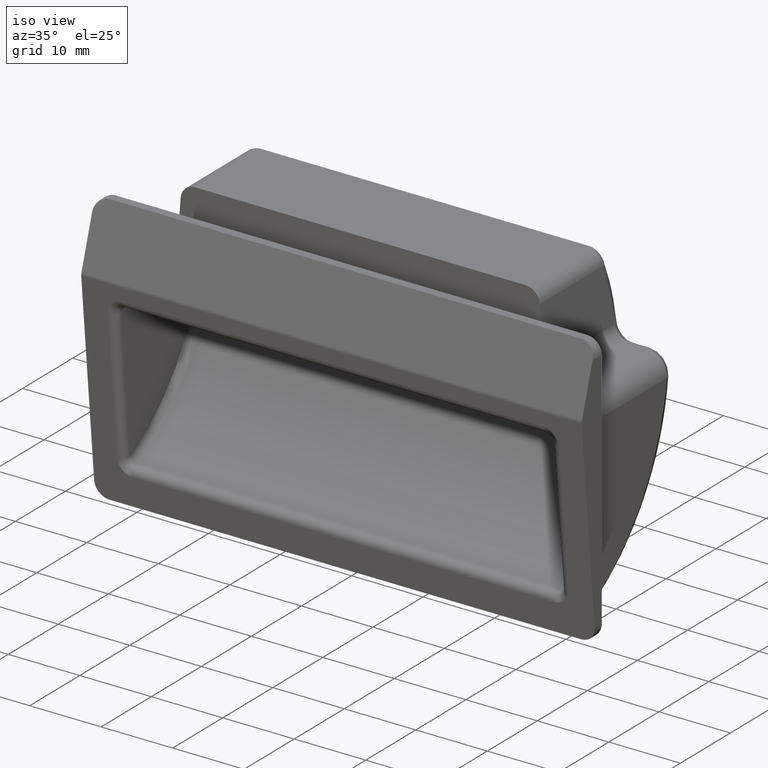
[diagram: clean part render]
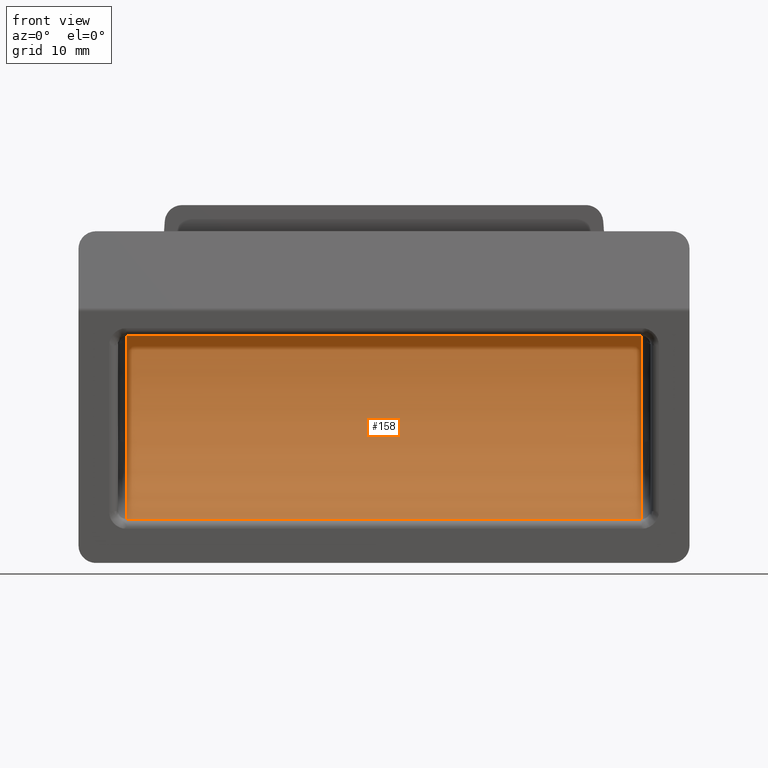
[diagram: tour spotlight — one face highlighted and labeled with its STEP entity id]
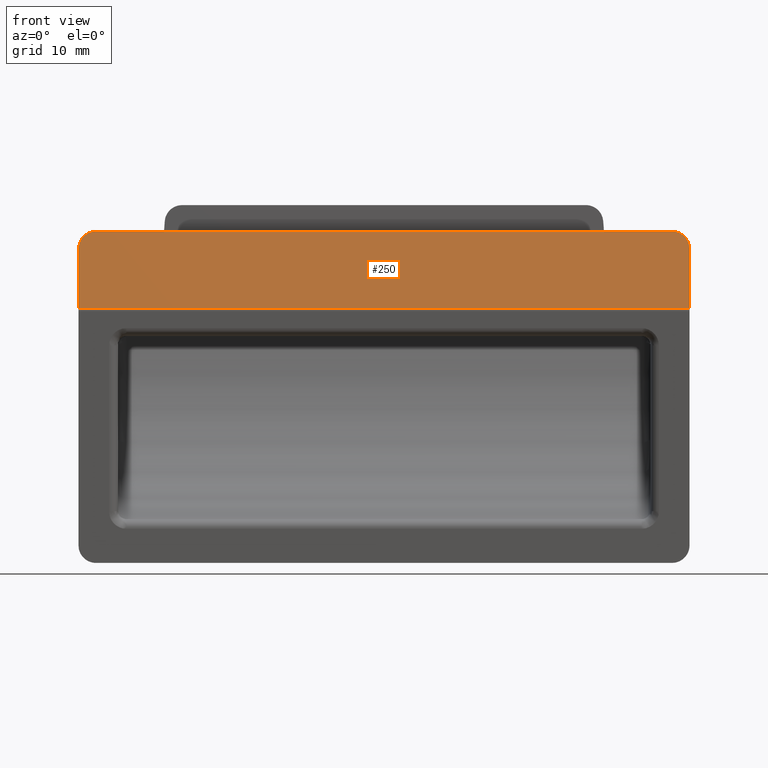
[diagram: tour spotlight — one face highlighted and labeled with its STEP entity id]
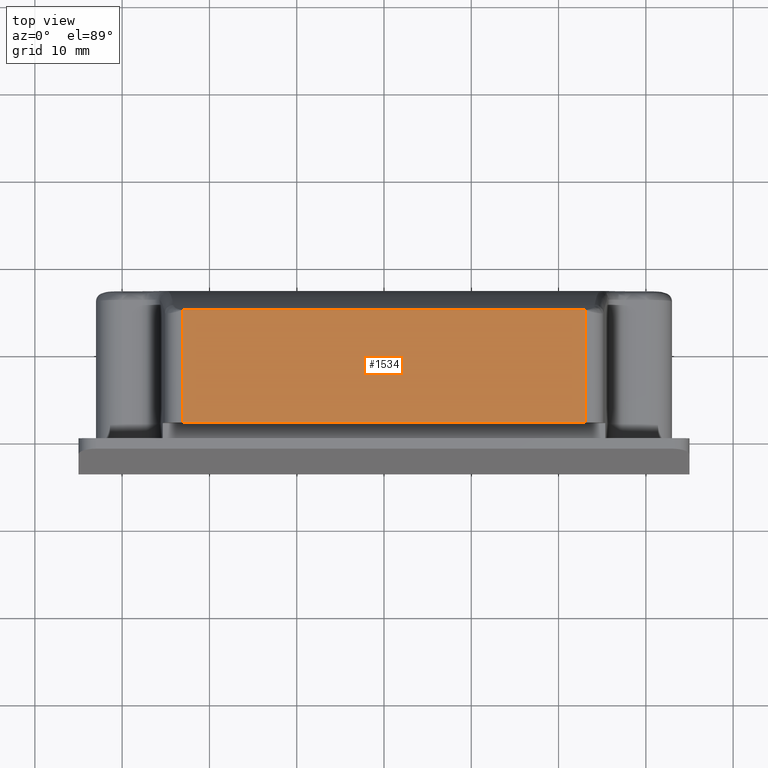
[diagram: tour spotlight — one face highlighted and labeled with its STEP entity id]
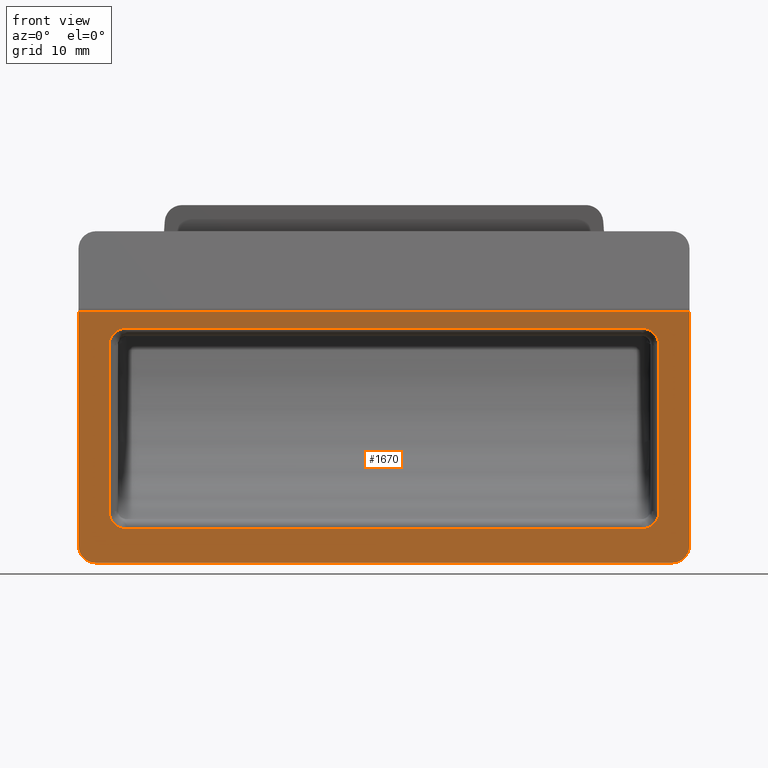
[diagram: tour spotlight — one face highlighted and labeled with its STEP entity id]
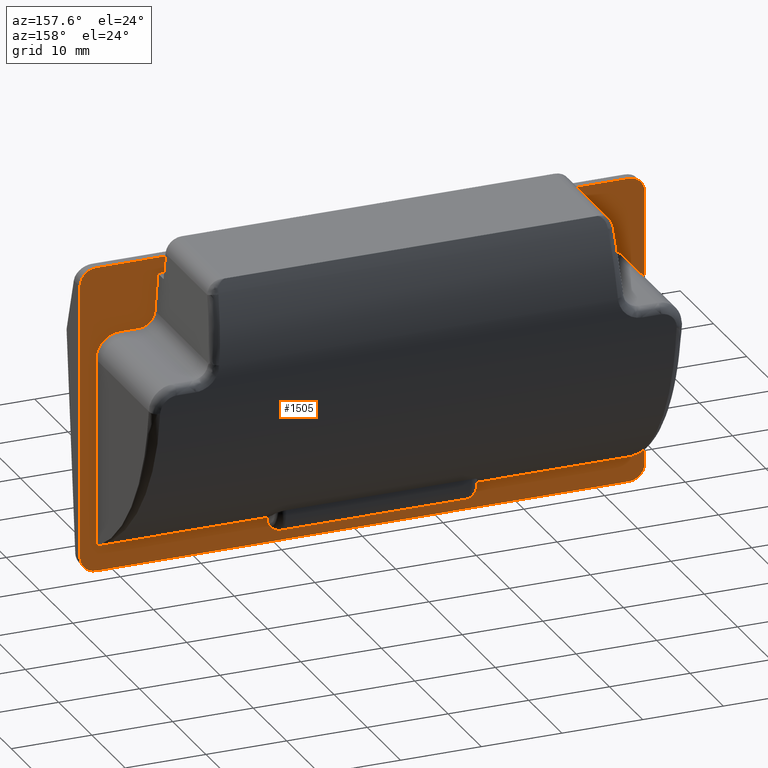
[diagram: tour spotlight — one face highlighted and labeled with its STEP entity id]
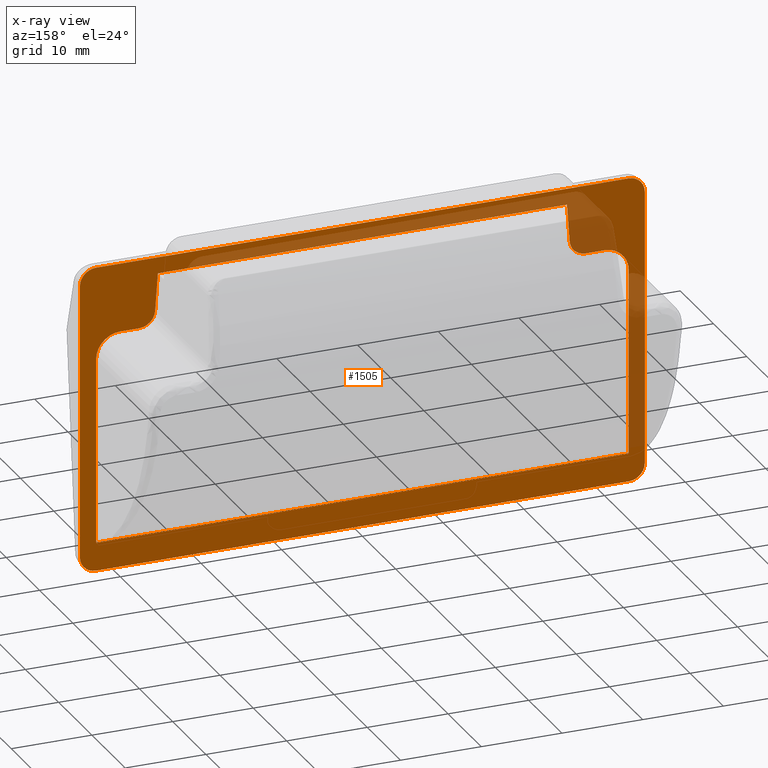
[diagram: x-ray of the same camera — body ghosted, this tour face saturated]
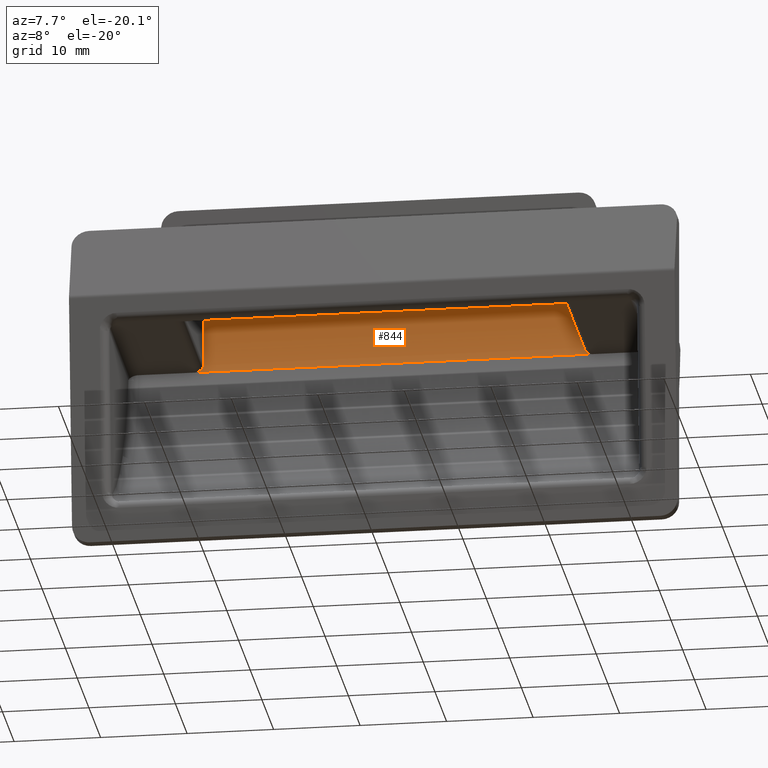
[diagram: tour spotlight — one face highlighted and labeled with its STEP entity id]
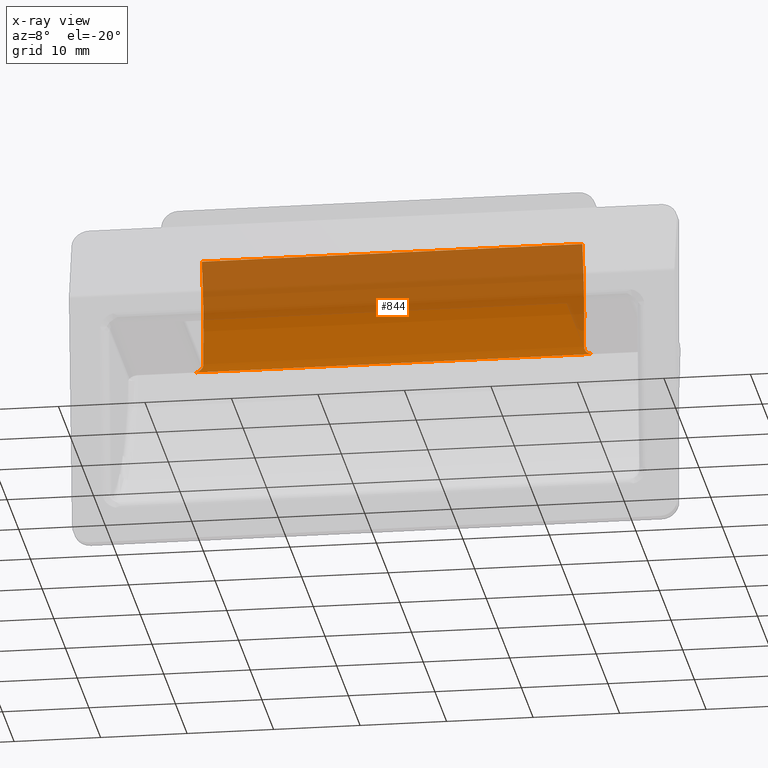
[diagram: x-ray of the same camera — body ghosted, this tour face saturated]
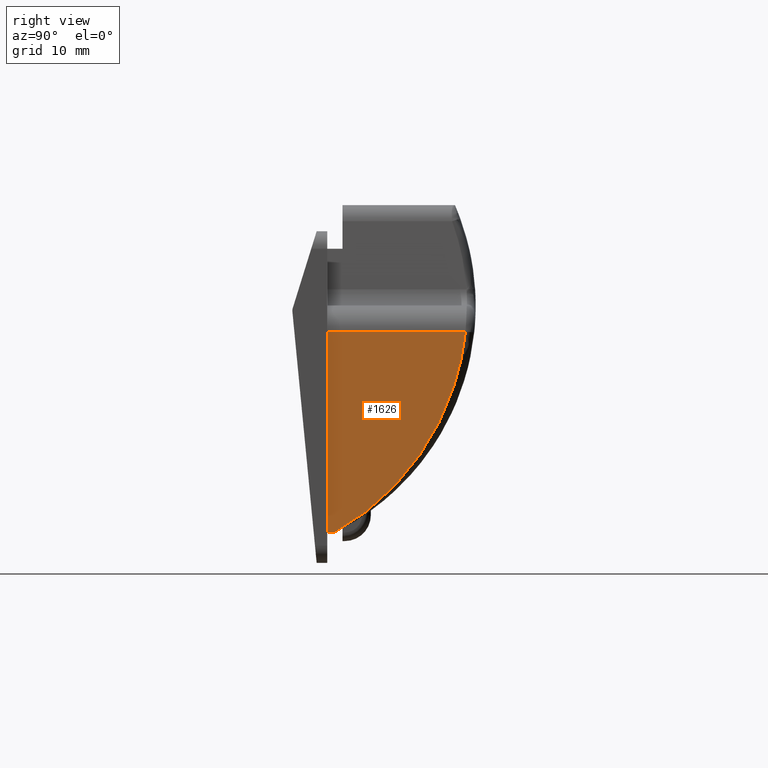
[diagram: tour spotlight — one face highlighted and labeled with its STEP entity id]
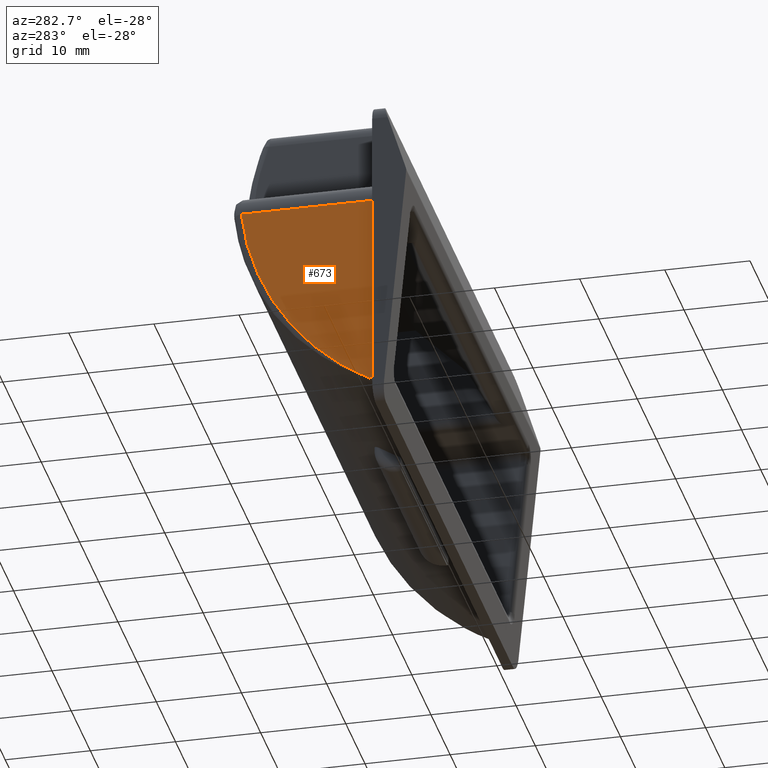
[diagram: tour spotlight — one face highlighted and labeled with its STEP entity id]
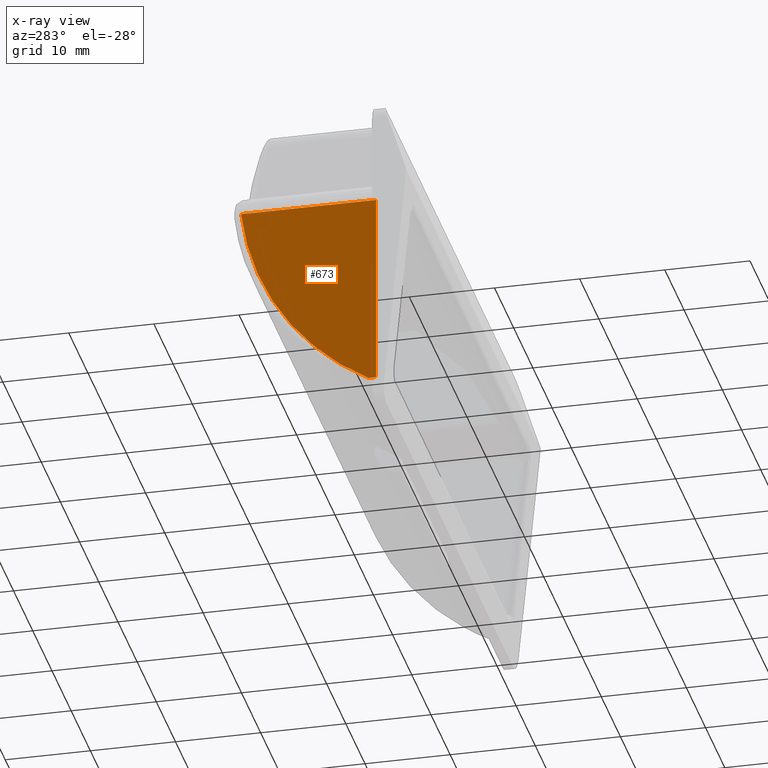
[diagram: x-ray of the same camera — body ghosted, this tour face saturated]
A machine part: a face-by-face anatomy tour. The part has 82 B-rep faces; the first image is the clean iso view, then the 8 largest visible faces are spotlighted one at a time (largest first), each with its STEP entity span.

Face 1 — front view, entity #158. In plain terms, the highlighted cylindrical surface (partial cylindrical patch) has radius 29.3282 mm, axis along (1, 0, 0).
Definition (entity closure, byte-faithful):
#26 = VECTOR ( 'NONE', #1277, 1000.000000000000000 ) ;
#72 = DIRECTION ( 'NONE',  ( 1.000000000000000000, 0.0000000000000000000, 0.0000000000000000000 ) ) ;
#139 = CYLINDRICAL_SURFACE ( 'NONE', #432, 29.32816273254530200 ) ;
#158 = ADVANCED_FACE ( 'NONE', ( #2968 ), #139, .F. ) ;
#180 = CARTESIAN_POINT ( 'NONE',  ( -29.50000000000000000, 14.71560498968656100, 6.242930651828519500 ) ) ;
#332 = VERTEX_POINT ( 'NONE', #493 ) ;
#362 = EDGE_CURVE ( 'NONE', #2654, #507, #1713, .T. ) ;
#432 = AXIS2_PLACEMENT_3D ( 'NONE', #2884, #2622, #1302 ) ;
#459 = CIRCLE ( 'NONE', #2616, 29.32816273254530200 ) ;
#493 = CARTESIAN_POINT ( 'NONE',  ( 29.50000000000000000, 14.71560498968656100, 6.242930651828519500 ) ) ;
#507 = VERTEX_POINT ( 'NONE', #2026 ) ;
#535 = CARTESIAN_POINT ( 'NONE',  ( -969.5000000000000000, 1.421085471520200100E-014, -14.75000000000000000 ) ) ;
#627 = EDGE_CURVE ( 'NONE', #332, #1715, #1432, .T. ) ;
#632 = CARTESIAN_POINT ( 'NONE',  ( -29.50000000000000000, 1.421085471520200100E-014, -14.75000000000000000 ) ) ;
#862 = CIRCLE ( 'NONE', #3018, 29.32816273254530200 ) ;
#871 = CARTESIAN_POINT ( 'NONE',  ( -29.50000000000000000, -14.24241057784380100, 10.88776258176182000 ) ) ;
#1126 = DIRECTION ( 'NONE',  ( 0.0000000000000000000, 0.0000000000000000000, 1.000000000000000000 ) ) ;
#1242 = CARTESIAN_POINT ( 'NONE',  ( -969.5000000000000000, 14.71560498968656100, 6.242930651828519500 ) ) ;
#1248 = ORIENTED_EDGE ( 'NONE', *, *, #362, .T. ) ;
#1277 = DIRECTION ( 'NONE',  ( -1.000000000000000000, -0.0000000000000000000, -0.0000000000000000000 ) ) ;
#1302 = DIRECTION ( 'NONE',  ( 0.0000000000000000000, 0.0000000000000000000, -1.000000000000000000 ) ) ;
#1333 = CARTESIAN_POINT ( 'NONE',  ( 29.50000000000000000, -14.24241057784380100, 10.88776258176182000 ) ) ;
#1432 = LINE ( 'NONE', #1242, #26 ) ;
#1612 = DIRECTION ( 'NONE',  ( 0.0000000000000000000, 8.872308973782701400E-016, 1.000000000000000000 ) ) ;
#1713 = LINE ( 'NONE', #535, #2306 ) ;
#1715 = VERTEX_POINT ( 'NONE', #180 ) ;
#1932 = EDGE_CURVE ( 'NONE', #507, #332, #862, .T. ) ;
#1978 = ORIENTED_EDGE ( 'NONE', *, *, #2542, .T. ) ;
#2026 = CARTESIAN_POINT ( 'NONE',  ( 29.50000000000000000, 1.421085471520200100E-014, -14.75000000000000000 ) ) ;
#2306 = VECTOR ( 'NONE', #72, 1000.000000000000000 ) ;
#2533 = EDGE_LOOP ( 'NONE', ( #1248, #2663, #3357, #1978 ) ) ;
#2542 = EDGE_CURVE ( 'NONE', #1715, #2654, #459, .T. ) ;
#2616 = AXIS2_PLACEMENT_3D ( 'NONE', #871, #2711, #1126 ) ;
#2622 = DIRECTION ( 'NONE',  ( 1.000000000000000000, 0.0000000000000000000, 0.0000000000000000000 ) ) ;
#2654 = VERTEX_POINT ( 'NONE', #632 ) ;
#2663 = ORIENTED_EDGE ( 'NONE', *, *, #1932, .T. ) ;
#2711 = DIRECTION ( 'NONE',  ( -1.000000000000000000, 0.0000000000000000000, 0.0000000000000000000 ) ) ;
#2884 = CARTESIAN_POINT ( 'NONE',  ( -969.5000000000000000, -14.24241057784380100, 10.88776258176182000 ) ) ;
#2968 = FACE_OUTER_BOUND ( 'NONE', #2533, .T. ) ;
#3018 = AXIS2_PLACEMENT_3D ( 'NONE', #1333, #3169, #1612 ) ;
#3169 = DIRECTION ( 'NONE',  ( 1.000000000000000000, -0.0000000000000000000, -0.0000000000000000000 ) ) ;
#3357 = ORIENTED_EDGE ( 'NONE', *, *, #627, .T. ) ;

Face 2 — front view, entity #250. In plain terms, the highlighted planar face has unit normal (0, 0.9549, -0.2971).
Definition (entity closure, byte-faithful):
#157 = CARTESIAN_POINT ( 'NONE',  ( -34.17157287525380800, -1.214746215283139400, 18.25000000000000000 ) ) ;
#214 = CARTESIAN_POINT ( 'NONE',  ( 35.00000000000000000, -1.836968437505390100, 16.25000000000000000 ) ) ;
#231 = EDGE_CURVE ( 'NONE', #351, #1890, #1312, .T. ) ;
#250 = ADVANCED_FACE ( 'NONE', ( #3425 ), #1543, .F. ) ;
#251 = VECTOR ( 'NONE', #930, 1000.000000000000000 ) ;
#254 = ORIENTED_EDGE ( 'NONE', *, *, #3304, .T. ) ;
#278 = DIRECTION ( 'NONE',  ( 0.0000000000000000000, 0.2970665526362566400, 0.9548567763307804800 ) ) ;
#331 = CARTESIAN_POINT ( 'NONE',  ( 33.00000000000000000, -1.214746215283140100, 18.25000000000000000 ) ) ;
#351 = VERTEX_POINT ( 'NONE', #331 ) ;
#436 = VECTOR ( 'NONE', #2503, 1000.000000000000100 ) ;
#468 = CARTESIAN_POINT ( 'NONE',  ( -35.00000000000000000, -3.954856776330779600, 9.442501768061589500 ) ) ;
#547 = EDGE_CURVE ( 'NONE', #1890, #1052, #3008, .T. ) ;
#634 = CARTESIAN_POINT ( 'NONE',  ( -35.00000000000000000, -1.214746215283180100, 18.25000000000000000 ) ) ;
#659 = CARTESIAN_POINT ( 'NONE',  ( 34.99999999999999300, -1.472479098537521600, 17.42157287525380800 ) ) ;
#915 = CARTESIAN_POINT ( 'NONE',  ( 34.17157287525380800, -1.214746215283139400, 18.25000000000000000 ) ) ;
#930 = DIRECTION ( 'NONE',  ( -1.000000000000000000, 0.0000000000000000000, 0.0000000000000000000 ) ) ;
#953 = LINE ( 'NONE', #1995, #251 ) ;
#1010 = EDGE_CURVE ( 'NONE', #2273, #2150, #1867, .T. ) ;
#1052 = VERTEX_POINT ( 'NONE', #3124 ) ;
#1229 = ORIENTED_EDGE ( 'NONE', *, *, #547, .T. ) ;
#1312 = LINE ( 'NONE', #2613, #2207 ) ;
#1358 = CARTESIAN_POINT ( 'NONE',  ( -33.00000000000000000, -1.214746215283140100, 18.25000000000000000 ) ) ;
#1543 = PLANE ( 'NONE',  #2224 ) ;
#1751 = VERTEX_POINT ( 'NONE', #468 ) ;
#1867 = LINE ( 'NONE', #2532, #436 ) ;
#1890 = VERTEX_POINT ( 'NONE', #1358 ) ;
#1901 = DIRECTION ( 'NONE',  ( -1.000000000000000000, 0.0000000000000000000, 0.0000000000000000000 ) ) ;
#1966 = ORIENTED_EDGE ( 'NONE', *, *, #231, .T. ) ;
#1995 = CARTESIAN_POINT ( 'NONE',  ( 965.0000000000000000, -3.954856776330779600, 9.442501768061589500 ) ) ;
#2130 = ORIENTED_EDGE ( 'NONE', *, *, #3265, .T. ) ;
#2132 = LINE ( 'NONE', #634, #3443 ) ;
#2150 = VERTEX_POINT ( 'NONE', #3012 ) ;
#2165 = EDGE_CURVE ( 'NONE', #2150, #1751, #953, .T. ) ;
#2207 = VECTOR ( 'NONE', #1901, 1000.000000000000000 ) ;
#2224 = AXIS2_PLACEMENT_3D ( 'NONE', #2638, #3428, #278 ) ;
#2247 = CARTESIAN_POINT ( 'NONE',  ( 35.00000000000000000, -1.836968437505390100, 16.25000000000000000 ) ) ;
#2273 = VERTEX_POINT ( 'NONE', #214 ) ;
#2497 =( BOUNDED_CURVE ( )  B_SPLINE_CURVE ( 3, ( #2247, #659, #915, #2758 ),
 .UNSPECIFIED., .F., .F. ) 
 B_SPLINE_CURVE_WITH_KNOTS ( ( 4, 4 ),
 ( 4.712388980384689700, 6.283185307179586200 ),
 .UNSPECIFIED. ) 
 CURVE ( )  GEOMETRIC_REPRESENTATION_ITEM ( )  RATIONAL_B_SPLINE_CURVE ( ( 1.000000000000000000, 0.8047378541243649400, 0.8047378541243649400, 1.000000000000000000 ) ) 
 REPRESENTATION_ITEM ( '' )  );
#2503 = DIRECTION ( 'NONE',  ( 0.0000000000000000000, -0.2970665526362566400, -0.9548567763307804800 ) ) ;
#2532 = CARTESIAN_POINT ( 'NONE',  ( 35.00000000000000000, -1.214746215283180100, 18.25000000000000000 ) ) ;
#2613 = CARTESIAN_POINT ( 'NONE',  ( 965.0000000000000000, -1.214746215283140100, 18.25000000000000000 ) ) ;
#2638 = CARTESIAN_POINT ( 'NONE',  ( 965.0000000000000000, -1.214746215283180100, 18.25000000000000000 ) ) ;
#2713 = EDGE_LOOP ( 'NONE', ( #1966, #1229, #2130, #2800, #2987, #254 ) ) ;
#2739 = DIRECTION ( 'NONE',  ( 0.0000000000000000000, -0.2970665526362566400, -0.9548567763307804800 ) ) ;
#2758 = CARTESIAN_POINT ( 'NONE',  ( 33.00000000000000000, -1.214746215283140100, 18.25000000000000000 ) ) ;
#2800 = ORIENTED_EDGE ( 'NONE', *, *, #2165, .F. ) ;
#2820 = CARTESIAN_POINT ( 'NONE',  ( -34.99999999999999300, -1.472479098537521600, 17.42157287525380800 ) ) ;
#2875 = CARTESIAN_POINT ( 'NONE',  ( -33.00000000000000000, -1.214746215283140100, 18.25000000000000000 ) ) ;
#2987 = ORIENTED_EDGE ( 'NONE', *, *, #1010, .F. ) ;
#3008 =( BOUNDED_CURVE ( )  B_SPLINE_CURVE ( 3, ( #2875, #157, #2820, #3318 ),
 .UNSPECIFIED., .F., .T. ) 
 B_SPLINE_CURVE_WITH_KNOTS ( ( 4, 4 ),
 ( 3.141592653589793100, 4.712388980384689700 ),
 .UNSPECIFIED. ) 
 CURVE ( )  GEOMETRIC_REPRESENTATION_ITEM ( )  RATIONAL_B_SPLINE_CURVE ( ( 1.000000000000000000, 0.8047378541243649400, 0.8047378541243649400, 1.000000000000000000 ) ) 
 REPRESENTATION_ITEM ( '' )  );
#3012 = CARTESIAN_POINT ( 'NONE',  ( 35.00000000000000000, -3.954856776330779600, 9.442501768061589500 ) ) ;
#3124 = CARTESIAN_POINT ( 'NONE',  ( -35.00000000000000000, -1.836968437505390100, 16.25000000000000000 ) ) ;
#3265 = EDGE_CURVE ( 'NONE', #1052, #1751, #2132, .T. ) ;
#3304 = EDGE_CURVE ( 'NONE', #2273, #351, #2497, .T. ) ;
#3318 = CARTESIAN_POINT ( 'NONE',  ( -35.00000000000000000, -1.836968437505390100, 16.25000000000000000 ) ) ;
#3425 = FACE_OUTER_BOUND ( 'NONE', #2713, .T. ) ;
#3428 = DIRECTION ( 'NONE',  ( 0.0000000000000000000, 0.9548567763307804800, -0.2970665526362566400 ) ) ;
#3443 = VECTOR ( 'NONE', #2739, 1000.000000000000100 ) ;

Face 3 — top view, entity #1534. In plain terms, the highlighted planar face has unit normal (0, 0, -1).
Definition (entity closure, byte-faithful):
#3 = VERTEX_POINT ( 'NONE', #931 ) ;
#287 = CARTESIAN_POINT ( 'NONE',  ( -23.12358699999990100, 1000.000000000000000, 21.25000000000000000 ) ) ;
#340 = VECTOR ( 'NONE', #2787, 1000.000000000000000 ) ;
#382 = DIRECTION ( 'NONE',  ( -1.000000000000000000, -0.0000000000000000000, -0.0000000000000000000 ) ) ;
#532 = CARTESIAN_POINT ( 'NONE',  ( -23.12358699999990100, 1000.000000000000000, 21.25000000000000000 ) ) ;
#669 = ORIENTED_EDGE ( 'NONE', *, *, #2094, .F. ) ;
#716 = LINE ( 'NONE', #532, #3039 ) ;
#925 = CARTESIAN_POINT ( 'NONE',  ( -23.12358699999990100, 1.750000000000000000, 21.25000000000000000 ) ) ;
#931 = CARTESIAN_POINT ( 'NONE',  ( 23.12358800000000200, 1.750000000000000000, 21.25000000000000000 ) ) ;
#1034 = EDGE_LOOP ( 'NONE', ( #2299, #669, #1516, #3123 ) ) ;
#1120 = DIRECTION ( 'NONE',  ( -1.000000000000000000, 0.0000000000000000000, 0.0000000000000000000 ) ) ;
#1428 = CARTESIAN_POINT ( 'NONE',  ( 23.12358800000004800, 14.62235902394826000, 21.25000000000000000 ) ) ;
#1516 = ORIENTED_EDGE ( 'NONE', *, *, #3016, .F. ) ;
#1534 = ADVANCED_FACE ( 'NONE', ( #3314 ), #2398, .F. ) ;
#1621 = DIRECTION ( 'NONE',  ( 0.0000000000000000000, 0.0000000000000000000, -1.000000000000000000 ) ) ;
#1760 = VECTOR ( 'NONE', #382, 1000.000000000000000 ) ;
#1925 = AXIS2_PLACEMENT_3D ( 'NONE', #287, #1621, #1120 ) ;
#2094 = EDGE_CURVE ( 'NONE', #3, #3390, #2524, .T. ) ;
#2170 = CARTESIAN_POINT ( 'NONE',  ( -23.12358699999990100, 14.62235902394829900, 21.25000000000000000 ) ) ;
#2299 = ORIENTED_EDGE ( 'NONE', *, *, #2370, .T. ) ;
#2370 = EDGE_CURVE ( 'NONE', #2491, #3390, #716, .T. ) ;
#2398 = PLANE ( 'NONE',  #1925 ) ;
#2452 = LINE ( 'NONE', #3022, #340 ) ;
#2491 = VERTEX_POINT ( 'NONE', #2170 ) ;
#2524 = LINE ( 'NONE', #3001, #1760 ) ;
#2633 = DIRECTION ( 'NONE',  ( 0.0000000000000000000, -1.000000000000000000, 0.0000000000000000000 ) ) ;
#2787 = DIRECTION ( 'NONE',  ( 0.0000000000000000000, -1.000000000000000000, 0.0000000000000000000 ) ) ;
#2813 = VERTEX_POINT ( 'NONE', #1428 ) ;
#2980 = VECTOR ( 'NONE', #3388, 1000.000000000000000 ) ;
#3001 = CARTESIAN_POINT ( 'NONE',  ( 0.0000000000000000000, 1.750000000000000000, 21.25000000000000000 ) ) ;
#3016 = EDGE_CURVE ( 'NONE', #2813, #3, #2452, .T. ) ;
#3022 = CARTESIAN_POINT ( 'NONE',  ( 23.12358800000000200, 1000.000000000000000, 21.25000000000000000 ) ) ;
#3039 = VECTOR ( 'NONE', #2633, 1000.000000000000000 ) ;
#3085 = EDGE_CURVE ( 'NONE', #2491, #2813, #3132, .T. ) ;
#3091 = CARTESIAN_POINT ( 'NONE',  ( -965.0000000000000000, 14.62235902394826000, 21.25000000000000000 ) ) ;
#3123 = ORIENTED_EDGE ( 'NONE', *, *, #3085, .F. ) ;
#3132 = LINE ( 'NONE', #3091, #2980 ) ;
#3314 = FACE_OUTER_BOUND ( 'NONE', #1034, .T. ) ;
#3388 = DIRECTION ( 'NONE',  ( 1.000000000000000000, 0.0000000000000000000, 0.0000000000000000000 ) ) ;
#3390 = VERTEX_POINT ( 'NONE', #925 ) ;

Face 4 — front view, entity #1670. In plain terms, the highlighted planar face has unit normal (0, 0.9954, 0.0961).
Definition (entity closure, byte-faithful):
#2 = DIRECTION ( 'NONE',  ( 0.0000000000000000000, 0.09610480746658905900, -0.9953712201896385300 ) ) ;
#7 = EDGE_CURVE ( 'NONE', #2050, #3185, #1398, .T. ) ;
#36 = EDGE_CURVE ( 'NONE', #454, #3185, #597, .T. ) ;
#38 = CARTESIAN_POINT ( 'NONE',  ( -29.50000000000000000, -3.812363682148570000, 7.153895192533429500 ) ) ;
#48 = VERTEX_POINT ( 'NONE', #2534 ) ;
#62 = ORIENTED_EDGE ( 'NONE', *, *, #2387, .F. ) ;
#88 = DIRECTION ( 'NONE',  ( -1.000000000000000000, 0.0000000000000000000, 0.0000000000000000000 ) ) ;
#94 = EDGE_LOOP ( 'NONE', ( #1146, #1946, #312, #934, #2621, #3196 ) ) ;
#97 = FACE_OUTER_BOUND ( 'NONE', #94, .T. ) ;
#121 = VECTOR ( 'NONE', #88, 1000.000000000000000 ) ;
#169 = FACE_BOUND ( 'NONE', #1761, .T. ) ;
#184 = VECTOR ( 'NONE', #628, 1000.000000000000000 ) ;
#206 = LINE ( 'NONE', #2215, #121 ) ;
#312 = ORIENTED_EDGE ( 'NONE', *, *, #2066, .F. ) ;
#325 = CARTESIAN_POINT ( 'NONE',  ( -35.00000000000000000, -1.294732282500057600, -18.92157287525381200 ) ) ;
#365 = CARTESIAN_POINT ( 'NONE',  ( -35.00000000000000000, -3.995371220189640300, 9.049330407958740000 ) ) ;
#373 = CARTESIAN_POINT ( 'NONE',  ( 31.50000000000000000, -3.619260233872700000, 5.153895192533429500 ) ) ;
#385 = EDGE_CURVE ( 'NONE', #2397, #1149, #1615, .T. ) ;
#387 = ORIENTED_EDGE ( 'NONE', *, *, #7, .F. ) ;
#389 = DIRECTION ( 'NONE',  ( 0.0000000000000000000, -0.09610480746658905900, 0.9953712201896385300 ) ) ;
#441 = AXIS2_PLACEMENT_3D ( 'NONE', #1071, #821, #1614 ) ;
#454 = VERTEX_POINT ( 'NONE', #38 ) ;
#491 = VECTOR ( 'NONE', #2795, 1000.000000000000000 ) ;
#537 =( BOUNDED_CURVE ( )  B_SPLINE_CURVE ( 3, ( #3436, #1869, #813, #2642 ),
 .UNSPECIFIED., .F., .F. ) 
 B_SPLINE_CURVE_WITH_KNOTS ( ( 4, 4 ),
 ( 0.0000000000000000000, 1.570796326794896600 ),
 .UNSPECIFIED. ) 
 CURVE ( )  GEOMETRIC_REPRESENTATION_ITEM ( )  RATIONAL_B_SPLINE_CURVE ( ( 1.000000000000000000, 0.8047378541243649400, 0.8047378541243649400, 1.000000000000000000 ) ) 
 REPRESENTATION_ITEM ( '' )  );
#554 = CARTESIAN_POINT ( 'NONE',  ( -35.00000000000000000, -3.995371220189640300, 9.049330407958740000 ) ) ;
#576 = ORIENTED_EDGE ( 'NONE', *, *, #961, .T. ) ;
#597 = LINE ( 'NONE', #1475, #491 ) ;
#628 = DIRECTION ( 'NONE',  ( -1.000000000000000000, 0.0000000000000000000, 0.0000000000000000000 ) ) ;
#646 = CARTESIAN_POINT ( 'NONE',  ( -29.50000000000000000, -3.812363682148570000, 7.153895192533429500 ) ) ;
#662 = CARTESIAN_POINT ( 'NONE',  ( -30.67157287525380500, -1.591674026976086300, -15.84610480746650300 ) ) ;
#675 = CARTESIAN_POINT ( 'NONE',  ( 31.50000000000000400, -3.732377614931697600, 6.325468067787240600 ) ) ;
#676 = VERTEX_POINT ( 'NONE', #2086 ) ;
#710 = DIRECTION ( 'NONE',  ( -1.000000000000000000, 0.0000000000000000000, 0.0000000000000000000 ) ) ;
#719 = CARTESIAN_POINT ( 'NONE',  ( -35.00000000000000000, -1.407849663559050100, -17.75000000000000000 ) ) ;
#813 = CARTESIAN_POINT ( 'NONE',  ( 31.50000000000000400, -1.671660094192957400, -15.01767768272031100 ) ) ;
#821 = DIRECTION ( 'NONE',  ( 0.0000000000000000000, 0.9953712201896385300, 0.09610480746658905900 ) ) ;
#822 = ORIENTED_EDGE ( 'NONE', *, *, #3375, .T. ) ;
#878 = CARTESIAN_POINT ( 'NONE',  ( -31.50000000000000000, -3.619260233872700000, 5.153895192533429500 ) ) ;
#903 = CARTESIAN_POINT ( 'NONE',  ( -30.67157287525380500, -3.812363682148567800, 7.153895192533432200 ) ) ;
#934 = ORIENTED_EDGE ( 'NONE', *, *, #2700, .T. ) ;
#961 = EDGE_CURVE ( 'NONE', #3275, #2854, #1397, .T. ) ;
#968 = ORIENTED_EDGE ( 'NONE', *, *, #36, .T. ) ;
#995 = CARTESIAN_POINT ( 'NONE',  ( 31.50000000000000000, -3.995371220189640300, 9.049330407958740000 ) ) ;
#1071 = CARTESIAN_POINT ( 'NONE',  ( 965.0000000000000000, -3.995371220189640300, 9.049330407958740000 ) ) ;
#1105 = ORIENTED_EDGE ( 'NONE', *, *, #1167, .T. ) ;
#1135 = VECTOR ( 'NONE', #1433, 1000.000000000000000 ) ;
#1146 = ORIENTED_EDGE ( 'NONE', *, *, #385, .F. ) ;
#1149 = VERTEX_POINT ( 'NONE', #3337 ) ;
#1153 = CARTESIAN_POINT ( 'NONE',  ( -34.17157287525380800, -1.214746215283181200, -19.75000000000000000 ) ) ;
#1167 = EDGE_CURVE ( 'NONE', #2050, #48, #2913, .T. ) ;
#1168 = DIRECTION ( 'NONE',  ( -0.0000000000000000000, 0.09610480746658905900, -0.9953712201896385300 ) ) ;
#1176 = CARTESIAN_POINT ( 'NONE',  ( 35.00000000000000000, -3.995371220189640300, 9.049330407958740000 ) ) ;
#1178 = CARTESIAN_POINT ( 'NONE',  ( -29.50000000000000000, -1.591674026976085200, -15.84610480746649900 ) ) ;
#1190 = CARTESIAN_POINT ( 'NONE',  ( 30.67157287525380500, -3.812363682148574000, 7.153895192533432200 ) ) ;
#1201 = CARTESIAN_POINT ( 'NONE',  ( 29.50000000000000000, -3.812363682148570000, 7.153895192533429500 ) ) ;
#1250 = EDGE_CURVE ( 'NONE', #2397, #676, #1927, .T. ) ;
#1314 = CARTESIAN_POINT ( 'NONE',  ( 33.00000000000000000, -1.214746215283180100, -19.75000000000000000 ) ) ;
#1324 = LINE ( 'NONE', #1992, #2649 ) ;
#1342 = ORIENTED_EDGE ( 'NONE', *, *, #2783, .F. ) ;
#1397 = LINE ( 'NONE', #2859, #2541 ) ;
#1398 =( BOUNDED_CURVE ( )  B_SPLINE_CURVE ( 3, ( #3021, #675, #1190, #1201 ),
 .UNSPECIFIED., .F., .F. ) 
 B_SPLINE_CURVE_WITH_KNOTS ( ( 4, 4 ),
 ( 4.712388980384689700, 6.283185307179586200 ),
 .UNSPECIFIED. ) 
 CURVE ( )  GEOMETRIC_REPRESENTATION_ITEM ( )  RATIONAL_B_SPLINE_CURVE ( ( 1.000000000000000000, 0.8047378541243649400, 0.8047378541243649400, 1.000000000000000000 ) ) 
 REPRESENTATION_ITEM ( '' )  );
#1399 = CARTESIAN_POINT ( 'NONE',  ( -31.50000000000000000, -1.784777475251955000, -13.84610480746649900 ) ) ;
#1410 = VERTEX_POINT ( 'NONE', #878 ) ;
#1420 = CARTESIAN_POINT ( 'NONE',  ( 29.50000000000000000, -1.591674026976085200, -15.84610480746649900 ) ) ;
#1433 = DIRECTION ( 'NONE',  ( 0.0000000000000000000, 0.09610480746658905900, -0.9953712201896385300 ) ) ;
#1475 = CARTESIAN_POINT ( 'NONE',  ( 965.0000000000000000, -3.812363682148570000, 7.153895192533429500 ) ) ;
#1483 = EDGE_CURVE ( 'NONE', #1541, #1149, #1733, .T. ) ;
#1496 = VECTOR ( 'NONE', #1168, 1000.000000000000000 ) ;
#1541 = VERTEX_POINT ( 'NONE', #3209 ) ;
#1614 = DIRECTION ( 'NONE',  ( 0.0000000000000000000, -0.09610480746658905900, 0.9953712201896385300 ) ) ;
#1615 = LINE ( 'NONE', #2900, #184 ) ;
#1670 = ADVANCED_FACE ( 'NONE', ( #97, #169 ), #3171, .F. ) ;
#1718 = CARTESIAN_POINT ( 'NONE',  ( -31.50000000000000000, -3.619260233872700000, 5.153895192533429500 ) ) ;
#1733 =( BOUNDED_CURVE ( )  B_SPLINE_CURVE ( 3, ( #719, #325, #1153, #1754 ),
 .UNSPECIFIED., .F., .F. ) 
 B_SPLINE_CURVE_WITH_KNOTS ( ( 4, 4 ),
 ( 4.712388980384689700, 6.283185307179586200 ),
 .UNSPECIFIED. ) 
 CURVE ( )  GEOMETRIC_REPRESENTATION_ITEM ( )  RATIONAL_B_SPLINE_CURVE ( ( 1.000000000000000000, 0.8047378541243649400, 0.8047378541243649400, 1.000000000000000000 ) ) 
 REPRESENTATION_ITEM ( '' )  );
#1754 = CARTESIAN_POINT ( 'NONE',  ( -33.00000000000000000, -1.214746215283180100, -19.75000000000000000 ) ) ;
#1761 = EDGE_LOOP ( 'NONE', ( #387, #1105, #62, #576, #3279, #822, #1342, #968 ) ) ;
#1846 = LINE ( 'NONE', #1176, #1135 ) ;
#1869 = CARTESIAN_POINT ( 'NONE',  ( 30.67157287525380500, -1.591674026976081000, -15.84610480746650300 ) ) ;
#1889 = VECTOR ( 'NONE', #2, 1000.000000000000000 ) ;
#1927 =( BOUNDED_CURVE ( )  B_SPLINE_CURVE ( 3, ( #2244, #2319, #2475, #2481 ),
 .UNSPECIFIED., .F., .F. ) 
 B_SPLINE_CURVE_WITH_KNOTS ( ( 4, 4 ),
 ( 3.141592653589793100, 4.712388980384689700 ),
 .UNSPECIFIED. ) 
 CURVE ( )  GEOMETRIC_REPRESENTATION_ITEM ( )  RATIONAL_B_SPLINE_CURVE ( ( 1.000000000000000000, 0.8047378541243649400, 0.8047378541243649400, 1.000000000000000000 ) ) 
 REPRESENTATION_ITEM ( '' )  );
#1946 = ORIENTED_EDGE ( 'NONE', *, *, #1250, .T. ) ;
#1988 = CARTESIAN_POINT ( 'NONE',  ( -31.50000000000000400, -1.671660094192962200, -15.01767768272031100 ) ) ;
#1992 = CARTESIAN_POINT ( 'NONE',  ( -31.50000000000000000, -3.725091042869475000, 6.250000000000000000 ) ) ;
#2050 = VERTEX_POINT ( 'NONE', #373 ) ;
#2066 = EDGE_CURVE ( 'NONE', #3145, #676, #1846, .T. ) ;
#2086 = CARTESIAN_POINT ( 'NONE',  ( 35.00000000000000000, -1.407849663559050100, -17.75000000000000000 ) ) ;
#2215 = CARTESIAN_POINT ( 'NONE',  ( 965.0000000000000000, -3.995371220189640300, 9.049330407958740000 ) ) ;
#2244 = CARTESIAN_POINT ( 'NONE',  ( 33.00000000000000000, -1.214746215283180100, -19.75000000000000000 ) ) ;
#2319 = CARTESIAN_POINT ( 'NONE',  ( 34.17157287525380800, -1.214746215283181200, -19.75000000000000000 ) ) ;
#2387 = EDGE_CURVE ( 'NONE', #3275, #48, #537, .T. ) ;
#2397 = VERTEX_POINT ( 'NONE', #1314 ) ;
#2438 = EDGE_CURVE ( 'NONE', #2772, #1541, #2740, .T. ) ;
#2475 = CARTESIAN_POINT ( 'NONE',  ( 35.00000000000000000, -1.294732282500057600, -18.92157287525381200 ) ) ;
#2481 = CARTESIAN_POINT ( 'NONE',  ( 35.00000000000000000, -1.407849663559050100, -17.75000000000000000 ) ) ;
#2499 = CARTESIAN_POINT ( 'NONE',  ( -29.50000000000000000, -1.591674026976085200, -15.84610480746649900 ) ) ;
#2534 = CARTESIAN_POINT ( 'NONE',  ( 31.50000000000000000, -1.784777475251955000, -13.84610480746649900 ) ) ;
#2541 = VECTOR ( 'NONE', #710, 1000.000000000000000 ) ;
#2602 = VERTEX_POINT ( 'NONE', #1399 ) ;
#2621 = ORIENTED_EDGE ( 'NONE', *, *, #2438, .T. ) ;
#2624 =( BOUNDED_CURVE ( )  B_SPLINE_CURVE ( 3, ( #646, #903, #3270, #1718 ),
 .UNSPECIFIED., .F., .T. ) 
 B_SPLINE_CURVE_WITH_KNOTS ( ( 4, 4 ),
 ( 3.141592653589793100, 4.712388980384689700 ),
 .UNSPECIFIED. ) 
 CURVE ( )  GEOMETRIC_REPRESENTATION_ITEM ( )  RATIONAL_B_SPLINE_CURVE ( ( 1.000000000000000000, 0.8047378541243649400, 0.8047378541243649400, 1.000000000000000000 ) ) 
 REPRESENTATION_ITEM ( '' )  );
#2642 = CARTESIAN_POINT ( 'NONE',  ( 31.50000000000000000, -1.784777475251955000, -13.84610480746649900 ) ) ;
#2649 = VECTOR ( 'NONE', #389, 1000.000000000000000 ) ;
#2700 = EDGE_CURVE ( 'NONE', #3145, #2772, #206, .T. ) ;
#2740 = LINE ( 'NONE', #554, #1889 ) ;
#2772 = VERTEX_POINT ( 'NONE', #365 ) ;
#2783 = EDGE_CURVE ( 'NONE', #454, #1410, #2624, .T. ) ;
#2795 = DIRECTION ( 'NONE',  ( 1.000000000000000000, 0.0000000000000000000, 0.0000000000000000000 ) ) ;
#2854 = VERTEX_POINT ( 'NONE', #1178 ) ;
#2859 = CARTESIAN_POINT ( 'NONE',  ( 965.0000000000000000, -1.591674026976085200, -15.84610480746649900 ) ) ;
#2892 = EDGE_CURVE ( 'NONE', #2602, #2854, #3237, .T. ) ;
#2900 = CARTESIAN_POINT ( 'NONE',  ( 965.0000000000000000, -1.214746215283180100, -19.75000000000000000 ) ) ;
#2913 = LINE ( 'NONE', #995, #1496 ) ;
#2932 = CARTESIAN_POINT ( 'NONE',  ( 35.00000000000000000, -3.995371220189640300, 9.049330407958740000 ) ) ;
#3003 = CARTESIAN_POINT ( 'NONE',  ( -31.50000000000000000, -1.784777475251955000, -13.84610480746649900 ) ) ;
#3021 = CARTESIAN_POINT ( 'NONE',  ( 31.50000000000000000, -3.619260233872700000, 5.153895192533429500 ) ) ;
#3145 = VERTEX_POINT ( 'NONE', #2932 ) ;
#3171 = PLANE ( 'NONE',  #441 ) ;
#3185 = VERTEX_POINT ( 'NONE', #3193 ) ;
#3193 = CARTESIAN_POINT ( 'NONE',  ( 29.50000000000000000, -3.812363682148570000, 7.153895192533429500 ) ) ;
#3196 = ORIENTED_EDGE ( 'NONE', *, *, #1483, .T. ) ;
#3209 = CARTESIAN_POINT ( 'NONE',  ( -35.00000000000000000, -1.407849663559050100, -17.75000000000000000 ) ) ;
#3237 =( BOUNDED_CURVE ( )  B_SPLINE_CURVE ( 3, ( #3003, #1988, #662, #2499 ),
 .UNSPECIFIED., .F., .F. ) 
 B_SPLINE_CURVE_WITH_KNOTS ( ( 4, 4 ),
 ( 1.570796326794896600, 3.141592653589793100 ),
 .UNSPECIFIED. ) 
 CURVE ( )  GEOMETRIC_REPRESENTATION_ITEM ( )  RATIONAL_B_SPLINE_CURVE ( ( 1.000000000000000000, 0.8047378541243649400, 0.8047378541243649400, 1.000000000000000000 ) ) 
 REPRESENTATION_ITEM ( '' )  );
#3270 = CARTESIAN_POINT ( 'NONE',  ( -31.50000000000000400, -3.732377614931691800, 6.325468067787240600 ) ) ;
#3275 = VERTEX_POINT ( 'NONE', #1420 ) ;
#3279 = ORIENTED_EDGE ( 'NONE', *, *, #2892, .F. ) ;
#3337 = CARTESIAN_POINT ( 'NONE',  ( -33.00000000000000000, -1.214746215283180100, -19.75000000000000000 ) ) ;
#3375 = EDGE_CURVE ( 'NONE', #2602, #1410, #1324, .T. ) ;
#3436 = CARTESIAN_POINT ( 'NONE',  ( 29.50000000000000000, -1.591674026976085200, -15.84610480746649900 ) ) ;

Face 5 — auxiliary view, entity #1505. An x-ray twin of the same camera follows (body ghosted, this face saturated) — the face is partly hidden behind the body. In plain terms, the highlighted planar face has unit normal (0, -1, 0).
Definition (entity closure, byte-faithful):
#31 = VERTEX_POINT ( 'NONE', #1771 ) ;
#45 = DIRECTION ( 'NONE',  ( 0.0000000000000000000, 0.0000000000000000000, -1.000000000000000000 ) ) ;
#60 = FACE_BOUND ( 'NONE', #1335, .T. ) ;
#105 = PLANE ( 'NONE',  #485 ) ;
#127 = EDGE_CURVE ( 'NONE', #1276, #2175, #1830, .T. ) ;
#151 = LINE ( 'NONE', #588, #808 ) ;
#155 = VECTOR ( 'NONE', #400, 1000.000000000000000 ) ;
#171 = CARTESIAN_POINT ( 'NONE',  ( 0.0000000000000000000, 0.0000000000000000000, 16.25000000000000000 ) ) ;
#181 = EDGE_CURVE ( 'NONE', #2775, #2453, #2272, .T. ) ;
#186 = VERTEX_POINT ( 'NONE', #1063 ) ;
#198 = ORIENTED_EDGE ( 'NONE', *, *, #2062, .T. ) ;
#237 = EDGE_CURVE ( 'NONE', #805, #2615, #2031, .T. ) ;
#257 = ORIENTED_EDGE ( 'NONE', *, *, #692, .F. ) ;
#259 = CARTESIAN_POINT ( 'NONE',  ( 27.67641300000000000, 0.0000000000000000000, 11.75000000000000000 ) ) ;
#290 = DIRECTION ( 'NONE',  ( -0.0000000000000000000, 1.000000000000000000, -0.0000000000000000000 ) ) ;
#320 = DIRECTION ( 'NONE',  ( 0.0000000000000000000, 0.0000000000000000000, -1.000000000000000000 ) ) ;
#339 = VERTEX_POINT ( 'NONE', #770 ) ;
#349 = CARTESIAN_POINT ( 'NONE',  ( -35.00000000000000000, 0.0000000000000000000, -17.75000000000000000 ) ) ;
#355 = EDGE_LOOP ( 'NONE', ( #406, #374, #198, #1078, #3075, #711, #3439, #2045 ) ) ;
#374 = ORIENTED_EDGE ( 'NONE', *, *, #1559, .T. ) ;
#400 = DIRECTION ( 'NONE',  ( 0.0000000000000000000, 0.0000000000000000000, 1.000000000000000000 ) ) ;
#406 = ORIENTED_EDGE ( 'NONE', *, *, #2852, .F. ) ;
#461 = CARTESIAN_POINT ( 'NONE',  ( -26.38293932697605000, 0.0000000000000000000, 1.907940587188410100 ) ) ;
#479 = CARTESIAN_POINT ( 'NONE',  ( -33.00000000000000000, 0.0000000000000000000, -17.75000000000000000 ) ) ;
#485 = AXIS2_PLACEMENT_3D ( 'NONE', #1462, #2815, #2696 ) ;
#492 = VERTEX_POINT ( 'NONE', #1403 ) ;
#497 = AXIS2_PLACEMENT_3D ( 'NONE', #259, #2133, #541 ) ;
#526 = CIRCLE ( 'NONE', #2441, 1.999999999999998200 ) ;
#533 = DIRECTION ( 'NONE',  ( 0.07212884787575128700, -0.0000000000000000000, 0.9973953224795657500 ) ) ;
#541 = DIRECTION ( 'NONE',  ( 1.734723475976807100E-015, 0.0000000000000000000, 1.000000000000000000 ) ) ;
#559 = CIRCLE ( 'NONE', #2110, 2.000000000000000000 ) ;
#586 = EDGE_CURVE ( 'NONE', #1276, #2561, #2829, .T. ) ;
#587 = CARTESIAN_POINT ( 'NONE',  ( -33.00000000000000000, 0.0000000000000000000, 18.25000000000000000 ) ) ;
#588 = CARTESIAN_POINT ( 'NONE',  ( 26.38294032177340000, 0.0000000000000000000, 1.907940659128990000 ) ) ;
#592 = VECTOR ( 'NONE', #533, 999.9999999999998900 ) ;
#605 = CARTESIAN_POINT ( 'NONE',  ( 33.00000000000000000, 0.0000000000000000000, -17.75000000000000000 ) ) ;
#630 = VECTOR ( 'NONE', #2818, 1000.000000000000000 ) ;
#644 = CIRCLE ( 'NONE', #497, 2.000000000000000000 ) ;
#680 = EDGE_CURVE ( 'NONE', #1723, #3031, #2681, .T. ) ;
#686 = CARTESIAN_POINT ( 'NONE',  ( -35.00000000000000000, 0.0000000000000000000, -19.75000000000000000 ) ) ;
#692 = EDGE_CURVE ( 'NONE', #186, #339, #2757, .T. ) ;
#711 = ORIENTED_EDGE ( 'NONE', *, *, #902, .T. ) ;
#758 = VERTEX_POINT ( 'NONE', #1263 ) ;
#770 = CARTESIAN_POINT ( 'NONE',  ( -27.67641200000000300, 0.0000000000000000000, 9.750000000000000000 ) ) ;
#789 = LINE ( 'NONE', #171, #630 ) ;
#794 = VECTOR ( 'NONE', #812, 1000.000000000000000 ) ;
#795 = EDGE_CURVE ( 'NONE', #2175, #758, #3373, .T. ) ;
#805 = VERTEX_POINT ( 'NONE', #1274 ) ;
#808 = VECTOR ( 'NONE', #849, 999.9999999999998900 ) ;
#812 = DIRECTION ( 'NONE',  ( -1.000000000000000000, 0.0000000000000000000, 0.0000000000000000000 ) ) ;
#815 = CARTESIAN_POINT ( 'NONE',  ( 30.00000000000000000, 0.0000000000000000000, 6.749999999999920100 ) ) ;
#839 = DIRECTION ( 'NONE',  ( -0.0000000000000000000, 1.000000000000000000, -0.0000000000000000000 ) ) ;
#849 = DIRECTION ( 'NONE',  ( 0.07212884787573689600, -0.0000000000000000000, -0.9973953224795667500 ) ) ;
#850 = DIRECTION ( 'NONE',  ( -0.0000000000000000000, -1.000000000000000000, -0.0000000000000000000 ) ) ;
#866 = FACE_OUTER_BOUND ( 'NONE', #355, .T. ) ;
#902 = EDGE_CURVE ( 'NONE', #1944, #2453, #2028, .T. ) ;
#908 = EDGE_CURVE ( 'NONE', #3031, #31, #789, .T. ) ;
#920 = VECTOR ( 'NONE', #2989, 1000.000000000000000 ) ;
#927 = DIRECTION ( 'NONE',  ( -1.000000000000000000, -0.0000000000000000000, -0.0000000000000000000 ) ) ;
#938 = VECTOR ( 'NONE', #3413, 1000.000000000000000 ) ;
#944 = CARTESIAN_POINT ( 'NONE',  ( -33.00000000000000000, 0.0000000000000000000, 0.0000000000000000000 ) ) ;
#1031 = DIRECTION ( 'NONE',  ( 0.0000000000000000000, 0.0000000000000000000, 1.000000000000000000 ) ) ;
#1060 = VERTEX_POINT ( 'NONE', #2265 ) ;
#1063 = CARTESIAN_POINT ( 'NONE',  ( -30.00000000000000000, 0.0000000000000000000, 9.750000000000000000 ) ) ;
#1078 = ORIENTED_EDGE ( 'NONE', *, *, #237, .T. ) ;
#1085 = LINE ( 'NONE', #1154, #920 ) ;
#1092 = DIRECTION ( 'NONE',  ( 1.000000000000000000, -0.0000000000000000000, -0.0000000000000000000 ) ) ;
#1115 = VECTOR ( 'NONE', #927, 1000.000000000000000 ) ;
#1125 = VERTEX_POINT ( 'NONE', #3067 ) ;
#1130 = LINE ( 'NONE', #944, #1756 ) ;
#1154 = CARTESIAN_POINT ( 'NONE',  ( 0.0000000000000000000, 0.0000000000000000000, 9.750000000000000000 ) ) ;
#1162 = AXIS2_PLACEMENT_3D ( 'NONE', #3041, #1471, #3323 ) ;
#1175 = ORIENTED_EDGE ( 'NONE', *, *, #3009, .F. ) ;
#1210 = DIRECTION ( 'NONE',  ( -0.0000000000000000000, -0.0000000000000000000, 1.000000000000000000 ) ) ;
#1261 = VECTOR ( 'NONE', #1092, 1000.000000000000000 ) ;
#1263 = CARTESIAN_POINT ( 'NONE',  ( -33.00000000000000000, 0.0000000000000000000, -16.25000000000000000 ) ) ;
#1274 = CARTESIAN_POINT ( 'NONE',  ( -33.00000000000000000, 0.0000000000000000000, -19.75000000000000000 ) ) ;
#1276 = VERTEX_POINT ( 'NONE', #2252 ) ;
#1288 = CARTESIAN_POINT ( 'NONE',  ( 33.00000000000000000, 0.0000000000000000000, 0.0000000000000000000 ) ) ;
#1335 = EDGE_LOOP ( 'NONE', ( #2364, #1629, #2179, #257, #2698, #1175, #2717, #2848, #2734, #1560, #2937, #2810 ) ) ;
#1338 = CARTESIAN_POINT ( 'NONE',  ( 27.67641300000000000, 0.0000000000000000000, 9.750000000000000000 ) ) ;
#1403 = CARTESIAN_POINT ( 'NONE',  ( 35.00000000000000000, 0.0000000000000000000, 16.25000000000000000 ) ) ;
#1414 = VERTEX_POINT ( 'NONE', #2307 ) ;
#1419 = CARTESIAN_POINT ( 'NONE',  ( -30.00000000000000000, 0.0000000000000000000, 6.749999999999920100 ) ) ;
#1462 = CARTESIAN_POINT ( 'NONE',  ( 965.0000000000000000, 0.0000000000000000000, -19.75000000000000000 ) ) ;
#1471 = DIRECTION ( 'NONE',  ( -0.0000000000000000000, -1.000000000000000000, -0.0000000000000000000 ) ) ;
#1505 = ADVANCED_FACE ( 'NONE', ( #60, #866 ), #105, .F. ) ;
#1554 = CARTESIAN_POINT ( 'NONE',  ( -33.00000000000000000, 0.0000000000000000000, 6.749999999999920100 ) ) ;
#1559 = EDGE_CURVE ( 'NONE', #1414, #1060, #526, .T. ) ;
#1560 = ORIENTED_EDGE ( 'NONE', *, *, #2677, .F. ) ;
#1629 = ORIENTED_EDGE ( 'NONE', *, *, #680, .F. ) ;
#1647 = DIRECTION ( 'NONE',  ( -0.0000000000000000000, 1.000000000000000000, -0.0000000000000000000 ) ) ;
#1705 = EDGE_CURVE ( 'NONE', #339, #1723, #2496, .T. ) ;
#1712 = DIRECTION ( 'NONE',  ( 0.0000000000000000000, 0.0000000000000000000, 1.000000000000000000 ) ) ;
#1723 = VERTEX_POINT ( 'NONE', #2825 ) ;
#1749 = DIRECTION ( 'NONE',  ( -0.0000000000000000000, 1.000000000000000000, -0.0000000000000000000 ) ) ;
#1756 = VECTOR ( 'NONE', #1210, 1000.000000000000000 ) ;
#1771 = CARTESIAN_POINT ( 'NONE',  ( 25.34576259183305100, 0.0000000000000000000, 16.25000000000000000 ) ) ;
#1830 = LINE ( 'NONE', #1288, #938 ) ;
#1944 = VERTEX_POINT ( 'NONE', #2140 ) ;
#2006 = LINE ( 'NONE', #2489, #3302 ) ;
#2028 = CIRCLE ( 'NONE', #2646, 2.000000000000000000 ) ;
#2031 = CIRCLE ( 'NONE', #2389, 1.999999999999998200 ) ;
#2045 = ORIENTED_EDGE ( 'NONE', *, *, #2494, .T. ) ;
#2062 = EDGE_CURVE ( 'NONE', #1060, #805, #3157, .T. ) ;
#2098 = DIRECTION ( 'NONE',  ( 0.0000000000000000000, 0.0000000000000000000, -1.000000000000000000 ) ) ;
#2110 = AXIS2_PLACEMENT_3D ( 'NONE', #3205, #1647, #45 ) ;
#2131 = CARTESIAN_POINT ( 'NONE',  ( 965.0000000000000000, 0.0000000000000000000, 18.25000000000000000 ) ) ;
#2133 = DIRECTION ( 'NONE',  ( -0.0000000000000000000, -1.000000000000000000, -0.0000000000000000000 ) ) ;
#2140 = CARTESIAN_POINT ( 'NONE',  ( -35.00000000000000000, 0.0000000000000000000, 16.25000000000000000 ) ) ;
#2175 = VERTEX_POINT ( 'NONE', #2769 ) ;
#2179 = ORIENTED_EDGE ( 'NONE', *, *, #1705, .F. ) ;
#2218 = EDGE_CURVE ( 'NONE', #2615, #1944, #2285, .T. ) ;
#2235 = DIRECTION ( 'NONE',  ( -1.000000000000000000, 0.0000000000000000000, 0.0000000000000000000 ) ) ;
#2242 = DIRECTION ( 'NONE',  ( 0.0000000000000000000, 0.0000000000000000000, 1.000000000000000000 ) ) ;
#2252 = CARTESIAN_POINT ( 'NONE',  ( 33.00000000000000000, 0.0000000000000000000, 6.749999999999920100 ) ) ;
#2254 = CIRCLE ( 'NONE', #3134, 3.000000000000000000 ) ;
#2265 = CARTESIAN_POINT ( 'NONE',  ( 33.00000000000000000, 0.0000000000000000000, -19.75000000000000000 ) ) ;
#2272 = LINE ( 'NONE', #2131, #794 ) ;
#2285 = LINE ( 'NONE', #686, #155 ) ;
#2307 = CARTESIAN_POINT ( 'NONE',  ( 35.00000000000000000, 0.0000000000000000000, -17.75000000000000000 ) ) ;
#2311 = VERTEX_POINT ( 'NONE', #1554 ) ;
#2364 = ORIENTED_EDGE ( 'NONE', *, *, #908, .F. ) ;
#2381 = EDGE_CURVE ( 'NONE', #1125, #2447, #644, .T. ) ;
#2389 = AXIS2_PLACEMENT_3D ( 'NONE', #479, #290, #320 ) ;
#2441 = AXIS2_PLACEMENT_3D ( 'NONE', #605, #839, #2722 ) ;
#2447 = VERTEX_POINT ( 'NONE', #1338 ) ;
#2453 = VERTEX_POINT ( 'NONE', #587 ) ;
#2486 = CARTESIAN_POINT ( 'NONE',  ( 965.0000000000000000, 0.0000000000000000000, -19.75000000000000000 ) ) ;
#2489 = CARTESIAN_POINT ( 'NONE',  ( 35.00000000000000000, 0.0000000000000000000, -19.75000000000000000 ) ) ;
#2494 = EDGE_CURVE ( 'NONE', #2775, #492, #559, .T. ) ;
#2496 = CIRCLE ( 'NONE', #1162, 2.000000000000000000 ) ;
#2561 = VERTEX_POINT ( 'NONE', #2967 ) ;
#2610 = CARTESIAN_POINT ( 'NONE',  ( 0.0000000000000000000, 0.0000000000000000000, -16.25000000000000000 ) ) ;
#2615 = VERTEX_POINT ( 'NONE', #349 ) ;
#2643 = CARTESIAN_POINT ( 'NONE',  ( 0.0000000000000000000, 0.0000000000000000000, 9.750000000000000000 ) ) ;
#2646 = AXIS2_PLACEMENT_3D ( 'NONE', #2767, #1749, #2098 ) ;
#2677 = EDGE_CURVE ( 'NONE', #2447, #2561, #1085, .T. ) ;
#2681 = LINE ( 'NONE', #461, #592 ) ;
#2696 = DIRECTION ( 'NONE',  ( 0.0000000000000000000, 0.0000000000000000000, -1.000000000000000000 ) ) ;
#2698 = ORIENTED_EDGE ( 'NONE', *, *, #2724, .T. ) ;
#2717 = ORIENTED_EDGE ( 'NONE', *, *, #795, .F. ) ;
#2722 = DIRECTION ( 'NONE',  ( 0.0000000000000000000, 0.0000000000000000000, -1.000000000000000000 ) ) ;
#2724 = EDGE_CURVE ( 'NONE', #186, #2311, #2254, .T. ) ;
#2734 = ORIENTED_EDGE ( 'NONE', *, *, #586, .T. ) ;
#2757 = LINE ( 'NONE', #2643, #1261 ) ;
#2767 = CARTESIAN_POINT ( 'NONE',  ( -33.00000000000000000, 0.0000000000000000000, 16.25000000000000000 ) ) ;
#2769 = CARTESIAN_POINT ( 'NONE',  ( 33.00000000000000000, 0.0000000000000000000, -16.25000000000000000 ) ) ;
#2775 = VERTEX_POINT ( 'NONE', #2997 ) ;
#2810 = ORIENTED_EDGE ( 'NONE', *, *, #3208, .F. ) ;
#2815 = DIRECTION ( 'NONE',  ( 0.0000000000000000000, -1.000000000000000000, 0.0000000000000000000 ) ) ;
#2818 = DIRECTION ( 'NONE',  ( 1.000000000000000000, -0.0000000000000000000, -0.0000000000000000000 ) ) ;
#2825 = CARTESIAN_POINT ( 'NONE',  ( -25.68162135905609800, 0.0000000000000000000, 11.60574224872634000 ) ) ;
#2829 = CIRCLE ( 'NONE', #3004, 3.000000000000000000 ) ;
#2836 = CARTESIAN_POINT ( 'NONE',  ( -25.34576159183300000, 0.0000000000000000000, 16.25000000000000000 ) ) ;
#2848 = ORIENTED_EDGE ( 'NONE', *, *, #127, .F. ) ;
#2852 = EDGE_CURVE ( 'NONE', #1414, #492, #2006, .T. ) ;
#2937 = ORIENTED_EDGE ( 'NONE', *, *, #2381, .F. ) ;
#2967 = CARTESIAN_POINT ( 'NONE',  ( 30.00000000000000000, 0.0000000000000000000, 9.750000000000000000 ) ) ;
#2989 = DIRECTION ( 'NONE',  ( 1.000000000000000000, -0.0000000000000000000, -0.0000000000000000000 ) ) ;
#2997 = CARTESIAN_POINT ( 'NONE',  ( 33.00000000000000000, 0.0000000000000000000, 18.25000000000000000 ) ) ;
#3004 = AXIS2_PLACEMENT_3D ( 'NONE', #815, #850, #1031 ) ;
#3009 = EDGE_CURVE ( 'NONE', #758, #2311, #1130, .T. ) ;
#3031 = VERTEX_POINT ( 'NONE', #2836 ) ;
#3041 = CARTESIAN_POINT ( 'NONE',  ( -27.67641200000000300, 0.0000000000000000000, 11.75000000000000000 ) ) ;
#3067 = CARTESIAN_POINT ( 'NONE',  ( 25.68162235504090100, 0.0000000000000000000, 11.60574230424851900 ) ) ;
#3075 = ORIENTED_EDGE ( 'NONE', *, *, #2218, .T. ) ;
#3134 = AXIS2_PLACEMENT_3D ( 'NONE', #1419, #3261, #1712 ) ;
#3157 = LINE ( 'NONE', #2486, #3234 ) ;
#3205 = CARTESIAN_POINT ( 'NONE',  ( 33.00000000000000000, 0.0000000000000000000, 16.25000000000000000 ) ) ;
#3208 = EDGE_CURVE ( 'NONE', #31, #1125, #151, .T. ) ;
#3234 = VECTOR ( 'NONE', #2235, 1000.000000000000000 ) ;
#3261 = DIRECTION ( 'NONE',  ( -0.0000000000000000000, -1.000000000000000000, -0.0000000000000000000 ) ) ;
#3302 = VECTOR ( 'NONE', #2242, 1000.000000000000000 ) ;
#3323 = DIRECTION ( 'NONE',  ( 1.734723475976807100E-015, 0.0000000000000000000, 1.000000000000000000 ) ) ;
#3373 = LINE ( 'NONE', #2610, #1115 ) ;
#3413 = DIRECTION ( 'NONE',  ( -0.0000000000000000000, -0.0000000000000000000, -1.000000000000000000 ) ) ;
#3439 = ORIENTED_EDGE ( 'NONE', *, *, #181, .F. ) ;

Face 6 — auxiliary view, entity #844. An x-ray twin of the same camera follows (body ghosted, this face saturated) — the face is partly hidden behind the body. In plain terms, the highlighted cylindrical surface (partial cylindrical patch) has radius 27 mm, axis along (-1, 0, 0).
Definition (entity closure, byte-faithful):
#106 = CIRCLE ( 'NONE', #299, 27.00000000000000400 ) ;
#116 = EDGE_LOOP ( 'NONE', ( #570, #2566, #1177, #467, #3190, #2493 ) ) ;
#147 = VERTEX_POINT ( 'NONE', #790 ) ;
#153 = CARTESIAN_POINT ( 'NONE',  ( 978.0000000000000000, -12.00000000000000000, 10.15075756488809900 ) ) ;
#247 = CARTESIAN_POINT ( 'NONE',  ( -22.00000000000000400, 14.83055718238494200, 7.128138688835505800 ) ) ;
#261 = CARTESIAN_POINT ( 'NONE',  ( -22.00000000000000000, 14.84372562722514000, 7.250000000000000000 ) ) ;
#299 = AXIS2_PLACEMENT_3D ( 'NONE', #1304, #1315, #1351 ) ;
#391 = DIRECTION ( 'NONE',  ( 0.0000000000000000000, 0.0000000000000000000, 1.000000000000000000 ) ) ;
#403 = VERTEX_POINT ( 'NONE', #617 ) ;
#435 = CARTESIAN_POINT ( 'NONE',  ( -22.02186152017190700, 14.81685779235291300, 7.009228330509397900 ) ) ;
#449 = CARTESIAN_POINT ( 'NONE',  ( -22.10783873783567800, 14.78929523261102700, 6.782266994062774200 ) ) ;
#467 = ORIENTED_EDGE ( 'NONE', *, *, #1740, .T. ) ;
#505 = CARTESIAN_POINT ( 'NONE',  ( -22.17075972083732800, 14.77590737910156600, 6.678126908645232600 ) ) ;
#522 = CARTESIAN_POINT ( 'NONE',  ( -22.41159413997928600, 14.73966377608357400, 6.405907803199762700 ) ) ;
#527 = CARTESIAN_POINT ( 'NONE',  ( 22.00000000000000000, 13.42053868640590000, 19.25000000000000000 ) ) ;
#564 = EDGE_CURVE ( 'NONE', #2431, #147, #2419, .T. ) ;
#570 = ORIENTED_EDGE ( 'NONE', *, *, #1232, .F. ) ;
#589 = CARTESIAN_POINT ( 'NONE',  ( -22.63767345032294600, 14.72202142051133900, 6.286247364668229300 ) ) ;
#601 = CARTESIAN_POINT ( 'NONE',  ( 978.0000000000000000, 13.42053868640590000, 19.25000000000000000 ) ) ;
#617 = CARTESIAN_POINT ( 'NONE',  ( 22.88108633777219600, 14.71777301648634100, 6.257095401896259900 ) ) ;
#618 = EDGE_CURVE ( 'NONE', #2466, #1799, #106, .T. ) ;
#656 = CIRCLE ( 'NONE', #1173, 27.00000000000000400 ) ;
#657 = CARTESIAN_POINT ( 'NONE',  ( 978.0000000000000000, 14.71777301648634100, 6.257095401896259900 ) ) ;
#704 = CARTESIAN_POINT ( 'NONE',  ( -22.88108633777219600, 14.71777301648634100, 6.257095401896259900 ) ) ;
#790 = CARTESIAN_POINT ( 'NONE',  ( -22.88108633777219600, 14.71777301648634100, 6.257095401896259900 ) ) ;
#826 = CARTESIAN_POINT ( 'NONE',  ( -22.00000000000000000, 14.84372562722514000, 7.250000000000000000 ) ) ;
#844 = ADVANCED_FACE ( 'NONE', ( #2879 ), #2786, .F. ) ;
#847 = CARTESIAN_POINT ( 'NONE',  ( 22.00000000000000000, 14.84372562722514000, 7.250000000000000000 ) ) ;
#941 = DIRECTION ( 'NONE',  ( -1.000000000000000000, 0.0000000000000000000, 0.0000000000000000000 ) ) ;
#997 = CARTESIAN_POINT ( 'NONE',  ( 22.64317669947245200, 14.72519259575649600, 6.307927197120184500 ) ) ;
#1173 = AXIS2_PLACEMENT_3D ( 'NONE', #2206, #2226, #2236 ) ;
#1177 = ORIENTED_EDGE ( 'NONE', *, *, #2839, .T. ) ;
#1232 = EDGE_CURVE ( 'NONE', #2431, #1522, #656, .T. ) ;
#1249 = CARTESIAN_POINT ( 'NONE',  ( 22.88108633777219600, 14.71777301648634100, 6.257095401896259900 ) ) ;
#1258 = CARTESIAN_POINT ( 'NONE',  ( 22.33140192715794100, 14.75173789533126000, 6.496599531059546400 ) ) ;
#1282 = VECTOR ( 'NONE', #2735, 1000.000000000000000 ) ;
#1304 = CARTESIAN_POINT ( 'NONE',  ( 22.00000000000000000, -12.00000000000000000, 10.15075756488809900 ) ) ;
#1315 = DIRECTION ( 'NONE',  ( 1.000000000000000000, -0.0000000000000000000, -0.0000000000000000000 ) ) ;
#1351 = DIRECTION ( 'NONE',  ( 0.0000000000000000000, 4.433182216385173100E-015, 1.000000000000000000 ) ) ;
#1522 = VERTEX_POINT ( 'NONE', #2687 ) ;
#1527 = CARTESIAN_POINT ( 'NONE',  ( 22.00000000000000000, 14.81739470710303900, 7.006332620200440800 ) ) ;
#1740 = EDGE_CURVE ( 'NONE', #403, #2466, #2239, .T. ) ;
#1797 = LINE ( 'NONE', #601, #2487 ) ;
#1799 = VERTEX_POINT ( 'NONE', #527 ) ;
#2182 = LINE ( 'NONE', #657, #1282 ) ;
#2186 = DIRECTION ( 'NONE',  ( -1.000000000000000000, 0.0000000000000000000, 0.0000000000000000000 ) ) ;
#2206 = CARTESIAN_POINT ( 'NONE',  ( -22.00000000000000000, -12.00000000000000000, 10.15075756488809900 ) ) ;
#2226 = DIRECTION ( 'NONE',  ( 1.000000000000000000, -0.0000000000000000000, -0.0000000000000000000 ) ) ;
#2236 = DIRECTION ( 'NONE',  ( 0.0000000000000000000, 4.433182216385173100E-015, 1.000000000000000000 ) ) ;
#2239 = B_SPLINE_CURVE_WITH_KNOTS ( 'NONE', 3,
 ( #1249, #2321, #997, #2838, #1258, #3094, #1527, #3374 ),
 .UNSPECIFIED., .F., .F.,
 ( 4, 2, 2, 4 ),
 ( 5.054568667899559200E-017, 0.0003624508466203118900, 0.0007249016932405732500, 0.001449803386481096000 ),
 .UNSPECIFIED. ) ;
#2321 = CARTESIAN_POINT ( 'NONE',  ( 22.75940555387006700, 14.71989677064542200, 6.271668310173837700 ) ) ;
#2419 = B_SPLINE_CURVE_WITH_KNOTS ( 'NONE', 3,
 ( #261, #247, #435, #449, #505, #522, #589, #704 ),
 .UNSPECIFIED., .F., .F.,
 ( 4, 2, 2, 4 ),
 ( 0.0000000000000000000, 0.0003624894411086867600, 0.0007249788822173735200, 0.001449957764434737900 ),
 .UNSPECIFIED. ) ;
#2431 = VERTEX_POINT ( 'NONE', #826 ) ;
#2466 = VERTEX_POINT ( 'NONE', #847 ) ;
#2478 = AXIS2_PLACEMENT_3D ( 'NONE', #153, #941, #391 ) ;
#2487 = VECTOR ( 'NONE', #2186, 1000.000000000000000 ) ;
#2493 = ORIENTED_EDGE ( 'NONE', *, *, #2531, .T. ) ;
#2531 = EDGE_CURVE ( 'NONE', #1799, #1522, #1797, .T. ) ;
#2566 = ORIENTED_EDGE ( 'NONE', *, *, #564, .T. ) ;
#2687 = CARTESIAN_POINT ( 'NONE',  ( -22.00000000000000000, 13.42053868640590000, 19.25000000000000000 ) ) ;
#2735 = DIRECTION ( 'NONE',  ( 1.000000000000000000, -0.0000000000000000000, -0.0000000000000000000 ) ) ;
#2786 = CYLINDRICAL_SURFACE ( 'NONE', #2478, 27.00000000000000400 ) ;
#2838 = CARTESIAN_POINT ( 'NONE',  ( 22.42755003520765200, 14.74121714908012700, 6.421069923615720900 ) ) ;
#2839 = EDGE_CURVE ( 'NONE', #147, #403, #2182, .T. ) ;
#2879 = FACE_OUTER_BOUND ( 'NONE', #116, .T. ) ;
#3094 = CARTESIAN_POINT ( 'NONE',  ( 22.09084435019876800, 14.78792230675379700, 6.768358429051509100 ) ) ;
#3190 = ORIENTED_EDGE ( 'NONE', *, *, #618, .T. ) ;
#3374 = CARTESIAN_POINT ( 'NONE',  ( 22.00000000000000000, 14.84372562722514000, 7.250000000000000000 ) ) ;

Face 7 — right view, entity #1626. In plain terms, the highlighted planar face has unit normal (-1, 0, 0).
Definition (entity closure, byte-faithful):
#54 = CARTESIAN_POINT ( 'NONE',  ( 33.00000000000000000, 5.090854368389241100, -13.36631434710976100 ) ) ;
#100 = CARTESIAN_POINT ( 'NONE',  ( 33.00000000000000000, 1000.000000000000000, -16.25000000000000000 ) ) ;
#127 = EDGE_CURVE ( 'NONE', #1276, #2175, #1830, .T. ) ;
#131 = EDGE_LOOP ( 'NONE', ( #202, #600, #1438, #3412 ) ) ;
#194 = CARTESIAN_POINT ( 'NONE',  ( 32.99999999999999300, 10.88588692710205000, -6.959499183001680600 ) ) ;
#202 = ORIENTED_EDGE ( 'NONE', *, *, #2743, .F. ) ;
#209 = CARTESIAN_POINT ( 'NONE',  ( 33.00000000000000700, 14.20223565461469800, -0.3828904726064741900 ) ) ;
#226 = CARTESIAN_POINT ( 'NONE',  ( 33.00000000000000700, 6.222652843153937900, -12.37444569052263100 ) ) ;
#277 = CARTESIAN_POINT ( 'NONE',  ( 33.00000000000000000, 5.887677918189321100, -12.67773010995676200 ) ) ;
#324 = CARTESIAN_POINT ( 'NONE',  ( 33.00000000000000000, 1000.000000000000000, 6.749999999999920100 ) ) ;
#470 = CARTESIAN_POINT ( 'NONE',  ( 33.00000000000000700, 11.13244009673370800, -6.585245898695654400 ) ) ;
#484 = CARTESIAN_POINT ( 'NONE',  ( 32.99999999999999300, 14.49335652309202700, 0.4494383367939435200 ) ) ;
#600 = ORIENTED_EDGE ( 'NONE', *, *, #1634, .T. ) ;
#694 = LINE ( 'NONE', #3181, #2019 ) ;
#738 = CARTESIAN_POINT ( 'NONE',  ( 33.00000000000000700, 7.098059783362977300, -11.55230637195264800 ) ) ;
#749 = CARTESIAN_POINT ( 'NONE',  ( 33.00000000000000000, 11.98726088820319900, -5.203294322538648800 ) ) ;
#761 = CARTESIAN_POINT ( 'NONE',  ( 33.00000000000000000, 14.98803512896281700, 2.138537253261342900 ) ) ;
#853 = LINE ( 'NONE', #100, #2853 ) ;
#874 = DIRECTION ( 'NONE',  ( 0.0000000000000000000, -1.000000000000000000, 0.0000000000000000000 ) ) ;
#938 = VECTOR ( 'NONE', #3413, 1000.000000000000000 ) ;
#985 = CARTESIAN_POINT ( 'NONE',  ( 33.00000000000000700, 8.431746284231103100, -10.14014006299226100 ) ) ;
#986 = B_SPLINE_CURVE_WITH_KNOTS ( 'NONE', 3,
 ( #3313, #1595, #1929, #2661, #2910, #1114, #1658, #3090, #54, #277, #226, #1989, #3204, #738, #2563, #985, #2827, #1252, #3078, #1512, #3367, #1803, #194, #2071, #470, #2324, #749, #2580, #999, #2841, #1260, #3097, #1530, #3377, #1818, #209, #2081, #484, #2337, #761, #2590, #1012, #2857, #1272, #3108 ),
 .UNSPECIFIED., .F., .F.,
 ( 4, 1, 1, 2, 2, 1, 1, 2, 2, 1, 1, 2, 2, 1, 1, 2, 2, 1, 1, 2, 2, 1, 1, 2, 2, 1, 2, 2, 4 ),
 ( 0.0000000000000000000, 0.06250000000000025000, 0.09375000000000026400, 0.1093750000000002600, 0.1250000000000002800, 0.1875000000000003100, 0.2187500000000003100, 0.2343750000000003300, 0.2500000000000003300, 0.3125000000000002200, 0.3437500000000002200, 0.3593750000000002800, 0.3750000000000003300, 0.4375000000000001100, 0.4687500000000000600, 0.4843750000000000000, 0.4999999999999999400, 0.5624999999999997800, 0.5937499999999996700, 0.6093749999999997800, 0.6249999999999997800, 0.6875000000000000000, 0.7187500000000001100, 0.7343750000000000000, 0.7500000000000000000, 0.8125000000000000000, 0.8437500000000000000, 0.8750000000000000000, 1.000000000000000000 ),
 .UNSPECIFIED. ) ;
#999 = CARTESIAN_POINT ( 'NONE',  ( 33.00000000000000000, 12.68271515823235300, -3.897558294071827400 ) ) ;
#1012 = CARTESIAN_POINT ( 'NONE',  ( 33.00000000000000700, 15.20177669146854900, 2.996353030703813800 ) ) ;
#1114 = CARTESIAN_POINT ( 'NONE',  ( 33.00000000000000000, 3.652525171916180600, -14.46011437706282100 ) ) ;
#1161 = DIRECTION ( 'NONE',  ( 0.0000000000000000000, -1.000000000000000000, 0.0000000000000000000 ) ) ;
#1205 = DIRECTION ( 'NONE',  ( 0.0000000000000000000, 0.0000000000000000000, 1.000000000000000000 ) ) ;
#1237 = PLANE ( 'NONE',  #2535 ) ;
#1252 = CARTESIAN_POINT ( 'NONE',  ( 33.00000000000000000, 8.919661005204730500, -9.572350024319966600 ) ) ;
#1260 = CARTESIAN_POINT ( 'NONE',  ( 33.00000000000000700, 12.88225160924179800, -3.498871508079627100 ) ) ;
#1272 = CARTESIAN_POINT ( 'NONE',  ( 32.99999999999999300, 15.71268661687400800, 5.579887050679730900 ) ) ;
#1276 = VERTEX_POINT ( 'NONE', #2252 ) ;
#1288 = CARTESIAN_POINT ( 'NONE',  ( 33.00000000000000000, 0.0000000000000000000, 0.0000000000000000000 ) ) ;
#1383 = VERTEX_POINT ( 'NONE', #3321 ) ;
#1388 = VERTEX_POINT ( 'NONE', #1454 ) ;
#1438 = ORIENTED_EDGE ( 'NONE', *, *, #1548, .T. ) ;
#1454 = CARTESIAN_POINT ( 'NONE',  ( 33.00000000000000000, 0.8452325786653279700, -16.25000000000000000 ) ) ;
#1512 = CARTESIAN_POINT ( 'NONE',  ( 33.00000000000000000, 9.489780149187707200, -8.883605685061562300 ) ) ;
#1530 = CARTESIAN_POINT ( 'NONE',  ( 33.00000000000000000, 13.56526739950023800, -2.032399901261591400 ) ) ;
#1548 = EDGE_CURVE ( 'NONE', #1383, #1276, #694, .T. ) ;
#1595 = CARTESIAN_POINT ( 'NONE',  ( 32.99999999999999300, 1.374010219651666800, -15.95397679044651600 ) ) ;
#1626 = ADVANCED_FACE ( 'NONE', ( #3050 ), #1237, .F. ) ;
#1634 = EDGE_CURVE ( 'NONE', #1388, #1383, #986, .T. ) ;
#1658 = CARTESIAN_POINT ( 'NONE',  ( 32.99999999999999300, 3.776392424738871600, -14.37024057193940300 ) ) ;
#1803 = CARTESIAN_POINT ( 'NONE',  ( 32.99999999999999300, 10.63652414166032900, -7.329892774418823400 ) ) ;
#1818 = CARTESIAN_POINT ( 'NONE',  ( 32.99999999999999300, 14.10111607517766600, -0.6601269056069767300 ) ) ;
#1830 = LINE ( 'NONE', #1288, #938 ) ;
#1929 = CARTESIAN_POINT ( 'NONE',  ( 33.00000000000000700, 2.152123101180014200, -15.48582898674086800 ) ) ;
#1989 = CARTESIAN_POINT ( 'NONE',  ( 32.99999999999999300, 6.444520374887512800, -12.17043899107192900 ) ) ;
#2019 = VECTOR ( 'NONE', #874, 1000.000000000000000 ) ;
#2071 = CARTESIAN_POINT ( 'NONE',  ( 33.00000000000001400, 11.05036419947055900, -6.711201429110297500 ) ) ;
#2081 = CARTESIAN_POINT ( 'NONE',  ( 33.00000000000000700, 14.25219554342577400, -0.2427445728977360400 ) ) ;
#2175 = VERTEX_POINT ( 'NONE', #2769 ) ;
#2197 = DIRECTION ( 'NONE',  ( -1.000000000000000000, 0.0000000000000000000, 0.0000000000000000000 ) ) ;
#2252 = CARTESIAN_POINT ( 'NONE',  ( 33.00000000000000000, 0.0000000000000000000, 6.749999999999920100 ) ) ;
#2324 = CARTESIAN_POINT ( 'NONE',  ( 33.00000000000000000, 11.53121258781538400, -5.963269584212286000 ) ) ;
#2337 = CARTESIAN_POINT ( 'NONE',  ( 32.99999999999999300, 14.75871891431202000, 1.288017809340350300 ) ) ;
#2535 = AXIS2_PLACEMENT_3D ( 'NONE', #324, #2197, #1205 ) ;
#2563 = CARTESIAN_POINT ( 'NONE',  ( 33.00000000000000700, 7.729344281017345600, -10.91602754556509300 ) ) ;
#2580 = CARTESIAN_POINT ( 'NONE',  ( 33.00000000000000000, 12.47997953306253100, -4.292850069738938700 ) ) ;
#2590 = CARTESIAN_POINT ( 'NONE',  ( 32.99999999999999300, 15.13290234393686300, 2.708203542847468000 ) ) ;
#2661 = CARTESIAN_POINT ( 'NONE',  ( 33.00000000000000700, 3.033577698047721600, -14.89745881767750100 ) ) ;
#2743 = EDGE_CURVE ( 'NONE', #1388, #2175, #853, .T. ) ;
#2769 = CARTESIAN_POINT ( 'NONE',  ( 33.00000000000000000, 0.0000000000000000000, -16.25000000000000000 ) ) ;
#2827 = CARTESIAN_POINT ( 'NONE',  ( 33.00000000000000000, 8.725469304740459000, -9.800424959363764900 ) ) ;
#2841 = CARTESIAN_POINT ( 'NONE',  ( 33.00000000000000700, 12.81599901760303000, -3.632896803269282800 ) ) ;
#2853 = VECTOR ( 'NONE', #1161, 1000.000000000000000 ) ;
#2857 = CARTESIAN_POINT ( 'NONE',  ( 33.00000000000000700, 15.52166406773103300, 4.423836991643692200 ) ) ;
#2910 = CARTESIAN_POINT ( 'NONE',  ( 33.00000000000001400, 3.405698861366420500, -14.63625780277746500 ) ) ;
#3050 = FACE_OUTER_BOUND ( 'NONE', #131, .T. ) ;
#3078 = CARTESIAN_POINT ( 'NONE',  ( 32.99999999999999300, 9.016826507523157700, -9.456445816658334300 ) ) ;
#3090 = CARTESIAN_POINT ( 'NONE',  ( 33.00000000000000700, 4.381779225904323600, -13.92382185062376000 ) ) ;
#3097 = CARTESIAN_POINT ( 'NONE',  ( 32.99999999999999300, 13.20335876733306800, -2.837188227331687500 ) ) ;
#3108 = CARTESIAN_POINT ( 'NONE',  ( 33.00000000000000000, 15.83882181415010100, 6.749999999999920100 ) ) ;
#3181 = CARTESIAN_POINT ( 'NONE',  ( 33.00000000000000000, 1000.000000000000000, 6.749999999999920100 ) ) ;
#3204 = CARTESIAN_POINT ( 'NONE',  ( 33.00000000000000000, 6.555752903230517100, -12.06655673436100300 ) ) ;
#3313 = CARTESIAN_POINT ( 'NONE',  ( 33.00000000000000000, 0.8452325786653279700, -16.25000000000000000 ) ) ;
#3321 = CARTESIAN_POINT ( 'NONE',  ( 33.00000000000000000, 15.83882181415010100, 6.749999999999920100 ) ) ;
#3367 = CARTESIAN_POINT ( 'NONE',  ( 33.00000000000000000, 10.03614950407308900, -8.179773211785995800 ) ) ;
#3377 = CARTESIAN_POINT ( 'NONE',  ( 33.00000000000000000, 13.94650921132933300, -1.074635506461160400 ) ) ;
#3412 = ORIENTED_EDGE ( 'NONE', *, *, #127, .T. ) ;
#3413 = DIRECTION ( 'NONE',  ( -0.0000000000000000000, -0.0000000000000000000, -1.000000000000000000 ) ) ;

Face 8 — auxiliary view, entity #673. An x-ray twin of the same camera follows (body ghosted, this face saturated) — the face is partly hidden behind the body. In plain terms, the highlighted planar face has unit normal (1, 0, 0).
Definition (entity closure, byte-faithful):
#466 = CARTESIAN_POINT ( 'NONE',  ( -33.00000000000000000, 1000.000000000000000, 6.749999999999920100 ) ) ;
#557 = CARTESIAN_POINT ( 'NONE',  ( -33.00000000000000000, 14.66639341863139700, 1.010287550262602300 ) ) ;
#616 = ORIENTED_EDGE ( 'NONE', *, *, #736, .T. ) ;
#661 = FACE_OUTER_BOUND ( 'NONE', #3071, .T. ) ;
#673 = ADVANCED_FACE ( 'NONE', ( #661 ), #828, .F. ) ;
#736 = EDGE_CURVE ( 'NONE', #3384, #2766, #1181, .T. ) ;
#758 = VERTEX_POINT ( 'NONE', #1263 ) ;
#765 = VECTOR ( 'NONE', #1970, 1000.000000000000000 ) ;
#828 = PLANE ( 'NONE',  #848 ) ;
#837 = CARTESIAN_POINT ( 'NONE',  ( -32.99999999999999300, 11.52667708045554600, -5.960172067417482300 ) ) ;
#848 = AXIS2_PLACEMENT_3D ( 'NONE', #1054, #955, #970 ) ;
#944 = CARTESIAN_POINT ( 'NONE',  ( -33.00000000000000000, 0.0000000000000000000, 0.0000000000000000000 ) ) ;
#955 = DIRECTION ( 'NONE',  ( 1.000000000000000000, 0.0000000000000000000, 0.0000000000000000000 ) ) ;
#970 = DIRECTION ( 'NONE',  ( 0.0000000000000000000, 0.0000000000000000000, -1.000000000000000000 ) ) ;
#1054 = CARTESIAN_POINT ( 'NONE',  ( -33.00000000000000000, 1000.000000000000000, -16.25000000000000000 ) ) ;
#1130 = LINE ( 'NONE', #944, #1756 ) ;
#1181 = B_SPLINE_CURVE_WITH_KNOTS ( 'NONE', 3,
 ( #1762, #1619, #1897, #1291, #1477, #2626, #2051, #2102, #557, #3382, #3114, #2116, #2135, #2148, #2172, #2294, #2303, #2363, #2409, #837, #3195, #2555, #2567, #2808, #2634, #2660, #2897, #2909, #2921, #3035, #2342, #2933, #2950, #3048, #3057, #3069, #3083, #3143, #3165, #3178, #3331, #3344, #3358 ),
 .UNSPECIFIED., .F., .F.,
 ( 4, 1, 2, 2, 1, 2, 2, 1, 2, 2, 1, 1, 2, 2, 1, 1, 2, 2, 1, 1, 2, 2, 1, 1, 2, 2, 4 ),
 ( 0.0000000000000000000, 0.06249999999999963900, 0.09374999999999943100, 0.1249999999999991800, 0.1874999999999986700, 0.2187499999999984200, 0.2499999999999981100, 0.3124999999999975000, 0.3437499999999971700, 0.3749999999999968900, 0.4374999999999963400, 0.4687499999999960000, 0.4843749999999959500, 0.4999999999999958400, 0.5624999999999956700, 0.5937499999999955600, 0.6093749999999955600, 0.6249999999999956700, 0.6874999999999958900, 0.7187499999999961100, 0.7343749999999962300, 0.7499999999999963400, 0.8124999999999971100, 0.8437499999999975600, 0.8593749999999976700, 0.8749999999999977800, 1.000000000000000000 ),
 .UNSPECIFIED. ) ;
#1206 = ORIENTED_EDGE ( 'NONE', *, *, #1422, .F. ) ;
#1210 = DIRECTION ( 'NONE',  ( -0.0000000000000000000, -0.0000000000000000000, 1.000000000000000000 ) ) ;
#1263 = CARTESIAN_POINT ( 'NONE',  ( -33.00000000000000000, 0.0000000000000000000, -16.25000000000000000 ) ) ;
#1291 = CARTESIAN_POINT ( 'NONE',  ( -33.00000000000000000, 15.50141306488617200, 4.428475570965503000 ) ) ;
#1417 = DIRECTION ( 'NONE',  ( 0.0000000000000000000, -1.000000000000000000, 0.0000000000000000000 ) ) ;
#1422 = EDGE_CURVE ( 'NONE', #3384, #2311, #1737, .T. ) ;
#1447 = LINE ( 'NONE', #2738, #765 ) ;
#1477 = CARTESIAN_POINT ( 'NONE',  ( -33.00000000000000700, 15.38967039067029700, 3.853877563615560200 ) ) ;
#1554 = CARTESIAN_POINT ( 'NONE',  ( -33.00000000000000000, 0.0000000000000000000, 6.749999999999920100 ) ) ;
#1619 = CARTESIAN_POINT ( 'NONE',  ( -33.00000000000000000, 15.77577333886729800, 6.165120926145733400 ) ) ;
#1737 = LINE ( 'NONE', #466, #2341 ) ;
#1756 = VECTOR ( 'NONE', #1210, 1000.000000000000000 ) ;
#1762 = CARTESIAN_POINT ( 'NONE',  ( -33.00000000000000000, 15.83882181415010100, 6.749999999999920100 ) ) ;
#1897 = CARTESIAN_POINT ( 'NONE',  ( -33.00000000000000000, 15.65685352647670700, 5.292942848616495300 ) ) ;
#1967 = CARTESIAN_POINT ( 'NONE',  ( -33.00000000000000000, 0.8452325786653279700, -16.25000000000000000 ) ) ;
#1970 = DIRECTION ( 'NONE',  ( 0.0000000000000000000, -1.000000000000000000, 0.0000000000000000000 ) ) ;
#2014 = ORIENTED_EDGE ( 'NONE', *, *, #2731, .T. ) ;
#2051 = CARTESIAN_POINT ( 'NONE',  ( -33.00000000000000000, 15.13700475863470800, 2.707218383568633400 ) ) ;
#2102 = CARTESIAN_POINT ( 'NONE',  ( -33.00000000000001400, 14.91977689914973500, 1.852975077344936300 ) ) ;
#2116 = CARTESIAN_POINT ( 'NONE',  ( -33.00000000000000000, 14.10613172385436800, -0.6620412508842280500 ) ) ;
#2135 = CARTESIAN_POINT ( 'NONE',  ( -32.99999999999999300, 13.79116537491346700, -1.488119553449146000 ) ) ;
#2148 = CARTESIAN_POINT ( 'NONE',  ( -33.00000000000000000, 13.44091553744686300, -2.298415475030696000 ) ) ;
#2172 = CARTESIAN_POINT ( 'NONE',  ( -33.00000000000000700, 13.19957487057443900, -2.835105560310980700 ) ) ;
#2294 = CARTESIAN_POINT ( 'NONE',  ( -33.00000000000000700, 13.07592301336506000, -3.099762178723347400 ) ) ;
#2303 = CARTESIAN_POINT ( 'NONE',  ( -33.00000000000000700, 12.68757309585004300, -3.900080198343728100 ) ) ;
#2311 = VERTEX_POINT ( 'NONE', #1554 ) ;
#2341 = VECTOR ( 'NONE', #1417, 1000.000000000000000 ) ;
#2342 = CARTESIAN_POINT ( 'NONE',  ( -33.00000000000000000, 7.412402418867222000, -11.23222141688686500 ) ) ;
#2363 = CARTESIAN_POINT ( 'NONE',  ( -33.00000000000000000, 12.27661333135375300, -4.687028681137532800 ) ) ;
#2409 = CARTESIAN_POINT ( 'NONE',  ( -33.00000000000000000, 11.75759304055762300, -5.581738554950476300 ) ) ;
#2501 = CARTESIAN_POINT ( 'NONE',  ( -33.00000000000000000, 15.83882181415010100, 6.749999999999920100 ) ) ;
#2555 = CARTESIAN_POINT ( 'NONE',  ( -33.00000000000000000, 11.29261567520221400, -6.335405750910374500 ) ) ;
#2567 = CARTESIAN_POINT ( 'NONE',  ( -33.00000000000000700, 10.89051027394135200, -6.962630175353898400 ) ) ;
#2626 = CARTESIAN_POINT ( 'NONE',  ( -33.00000000000000700, 15.33012887076422400, 3.569165542553233400 ) ) ;
#2634 = CARTESIAN_POINT ( 'NONE',  ( -33.00000000000000000, 9.761478341569723900, -8.529939159208298700 ) ) ;
#2660 = CARTESIAN_POINT ( 'NONE',  ( -33.00000000000000000, 9.485547465976559100, -8.879938640807898400 ) ) ;
#2731 = EDGE_CURVE ( 'NONE', #2766, #758, #1447, .T. ) ;
#2738 = CARTESIAN_POINT ( 'NONE',  ( -33.00000000000000000, 1000.000000000000000, -16.25000000000000000 ) ) ;
#2766 = VERTEX_POINT ( 'NONE', #1967 ) ;
#2773 = ORIENTED_EDGE ( 'NONE', *, *, #3009, .T. ) ;
#2808 = CARTESIAN_POINT ( 'NONE',  ( -32.99999999999999300, 10.38664986329809100, -7.699093224337506300 ) ) ;
#2897 = CARTESIAN_POINT ( 'NONE',  ( -33.00000000000000000, 9.299815721486933000, -9.111921106845249700 ) ) ;
#2909 = CARTESIAN_POINT ( 'NONE',  ( -33.00000000000000000, 9.206827718932988300, -9.226308284017205700 ) ) ;
#2921 = CARTESIAN_POINT ( 'NONE',  ( -32.99999999999999300, 8.729775303548386500, -9.804155815626282700 ) ) ;
#2933 = CARTESIAN_POINT ( 'NONE',  ( -33.00000000000000000, 7.094208974077340600, -11.54808758206510600 ) ) ;
#2950 = CARTESIAN_POINT ( 'NONE',  ( -33.00000000000001400, 6.880440934188684700, -11.75708336634869000 ) ) ;
#3009 = EDGE_CURVE ( 'NONE', #758, #2311, #1130, .T. ) ;
#3035 = CARTESIAN_POINT ( 'NONE',  ( -33.00000000000000700, 8.137643484742811900, -10.47859294353428300 ) ) ;
#3048 = CARTESIAN_POINT ( 'NONE',  ( -33.00000000000000700, 6.773629165880174200, -11.85994471339918700 ) ) ;
#3057 = CARTESIAN_POINT ( 'NONE',  ( -33.00000000000000700, 6.226554732764344500, -12.37875445580028700 ) ) ;
#3069 = CARTESIAN_POINT ( 'NONE',  ( -33.00000000000000000, 5.552467011109284200, -12.97969657196556500 ) ) ;
#3071 = EDGE_LOOP ( 'NONE', ( #1206, #616, #2014, #2773 ) ) ;
#3083 = CARTESIAN_POINT ( 'NONE',  ( -33.00000000000000700, 4.735234132491624900, -13.64294395173867800 ) ) ;
#3114 = CARTESIAN_POINT ( 'NONE',  ( -33.00000000000000000, 14.39757574711135000, 0.1745586390029370300 ) ) ;
#3143 = CARTESIAN_POINT ( 'NONE',  ( -33.00000000000000000, 4.378392069508503700, -13.91908173826578100 ) ) ;
#3165 = CARTESIAN_POINT ( 'NONE',  ( -33.00000000000000000, 4.139030827360019600, -14.10137113139084200 ) ) ;
#3178 = CARTESIAN_POINT ( 'NONE',  ( -33.00000000000000000, 4.019588624211210400, -14.19089800866244700 ) ) ;
#3195 = CARTESIAN_POINT ( 'NONE',  ( -33.00000000000000000, 11.37084895313908300, -6.211346947659940600 ) ) ;
#3331 = CARTESIAN_POINT ( 'NONE',  ( -33.00000000000000700, 2.920519071057983100, -15.00142737978809600 ) ) ;
#3344 = CARTESIAN_POINT ( 'NONE',  ( -33.00000000000000000, 1.903106668955657900, -15.65777510389595600 ) ) ;
#3358 = CARTESIAN_POINT ( 'NONE',  ( -33.00000000000000000, 0.8452325786653279700, -16.25000000000000000 ) ) ;
#3382 = CARTESIAN_POINT ( 'NONE',  ( -33.00000000000000000, 14.48943651583402200, 0.4510638164613470200 ) ) ;
#3384 = VERTEX_POINT ( 'NONE', #2501 ) ;